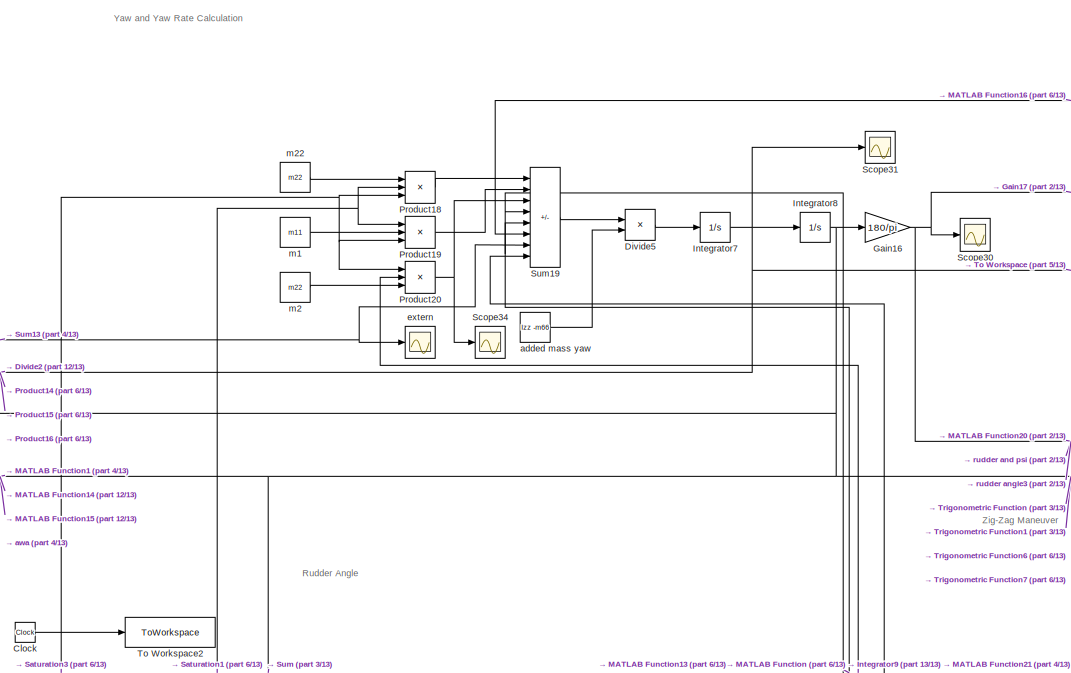
[diagram: root canvas - part 1/13, top right region]
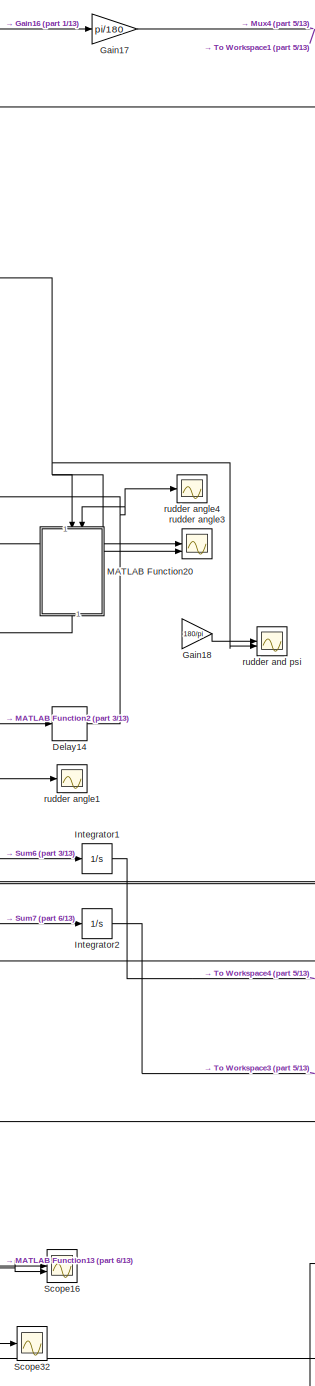
[diagram: root canvas - part 2/13, top right region]
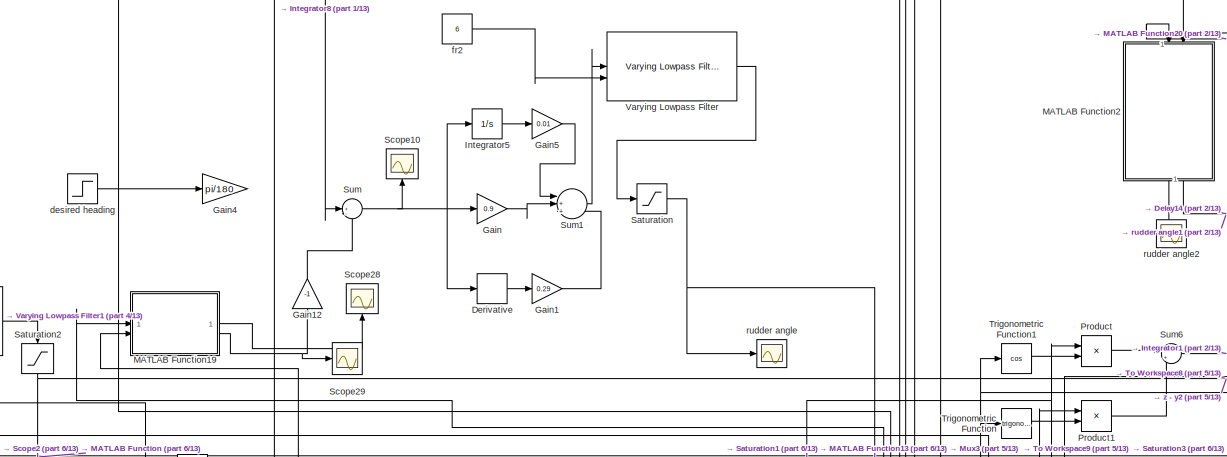
[diagram: root canvas - part 3/13, top right region]
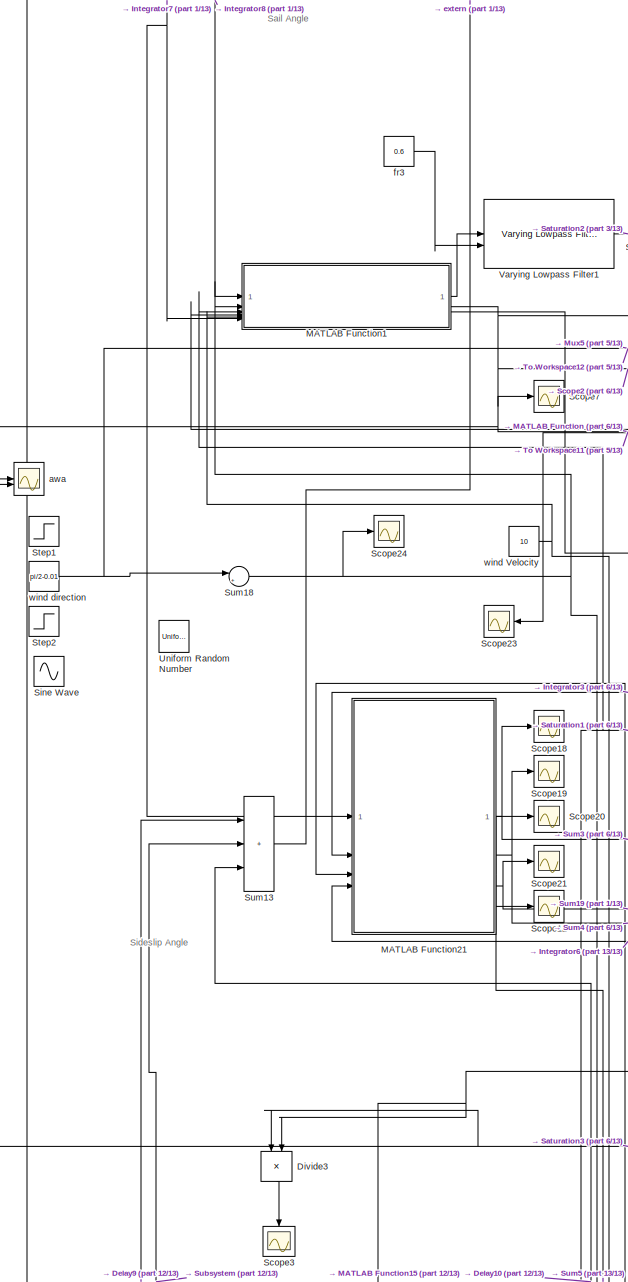
[diagram: root canvas - part 4/13, central region]
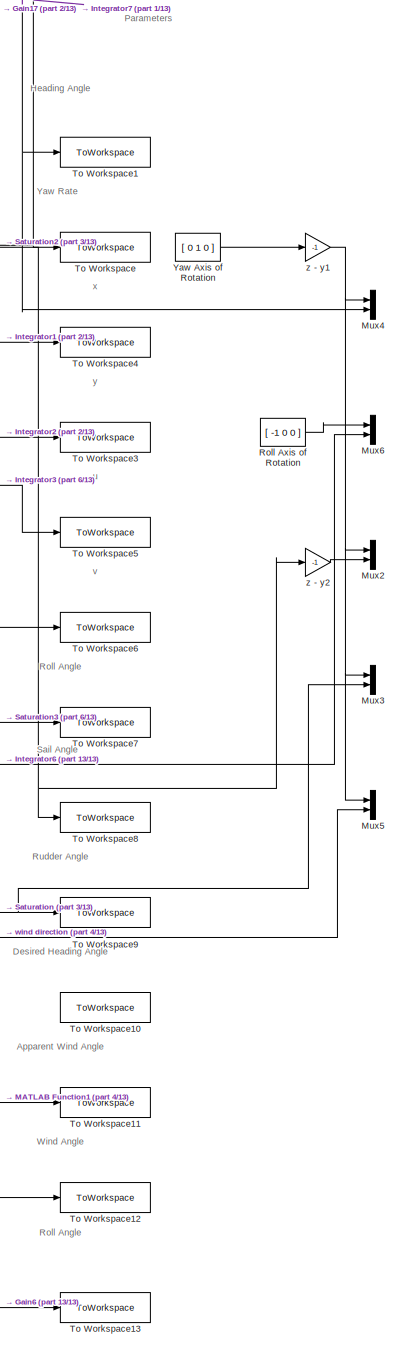
[diagram: root canvas - part 5/13, middle right region]
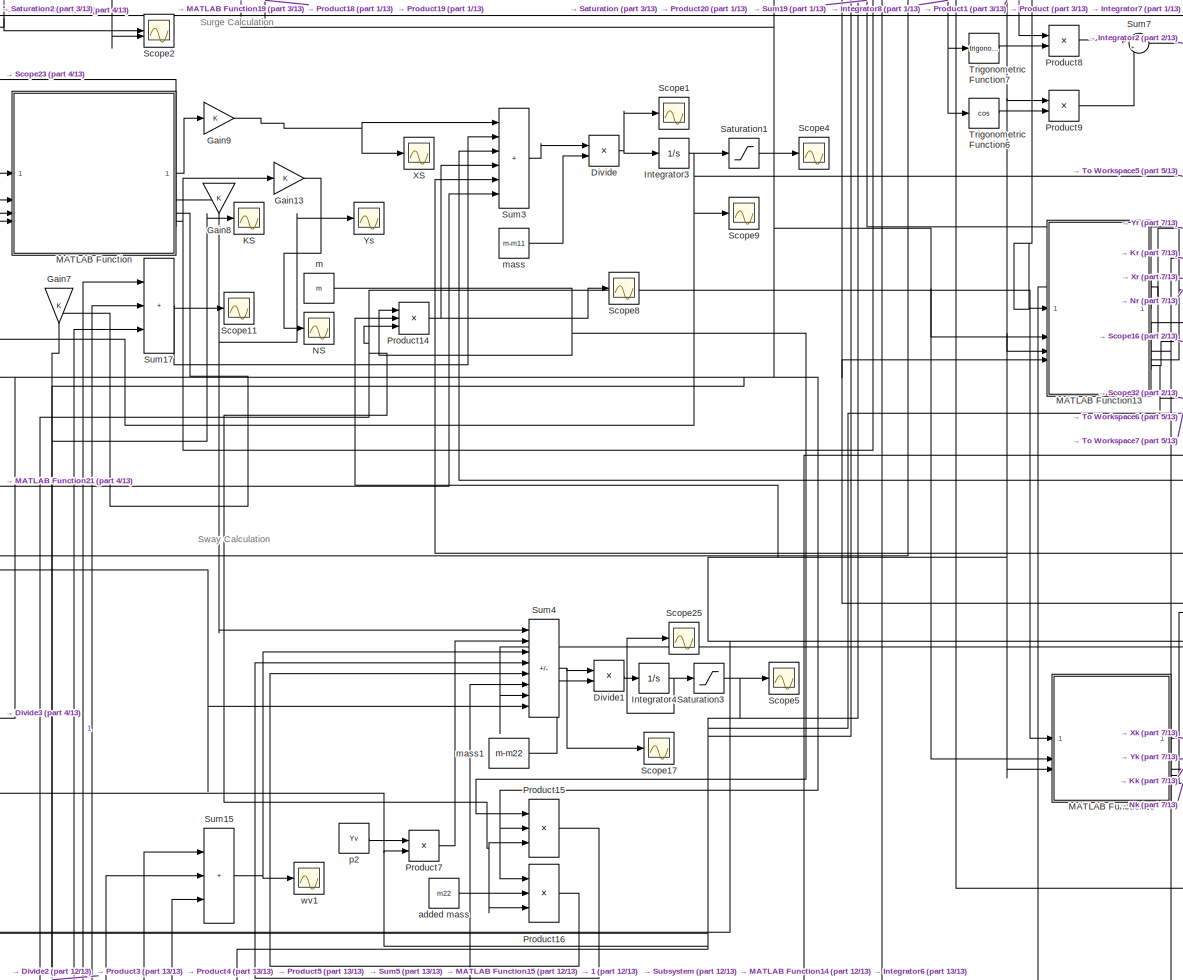
[diagram: root canvas - part 6/13, middle right region]
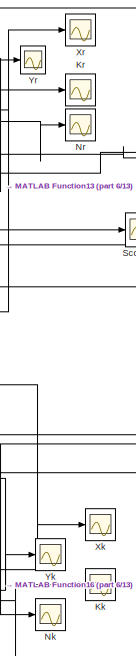
[diagram: root canvas - part 7/13, middle right region]
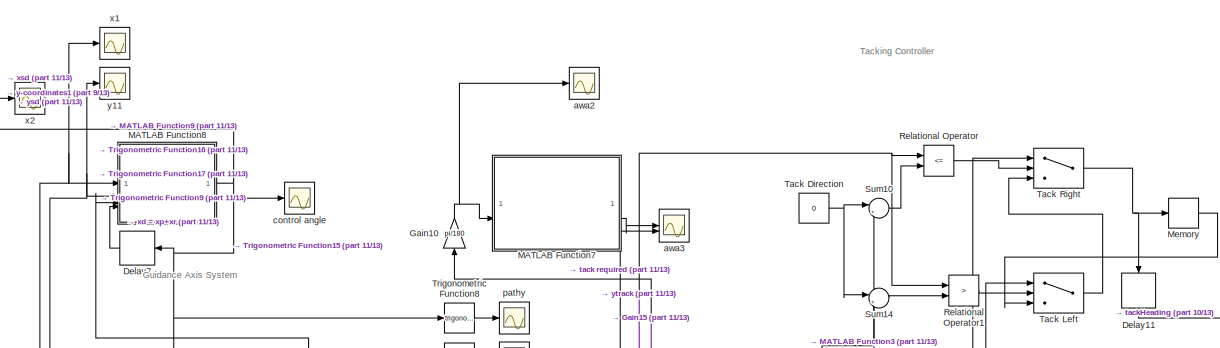
[diagram: root canvas - part 8/13, middle left region]
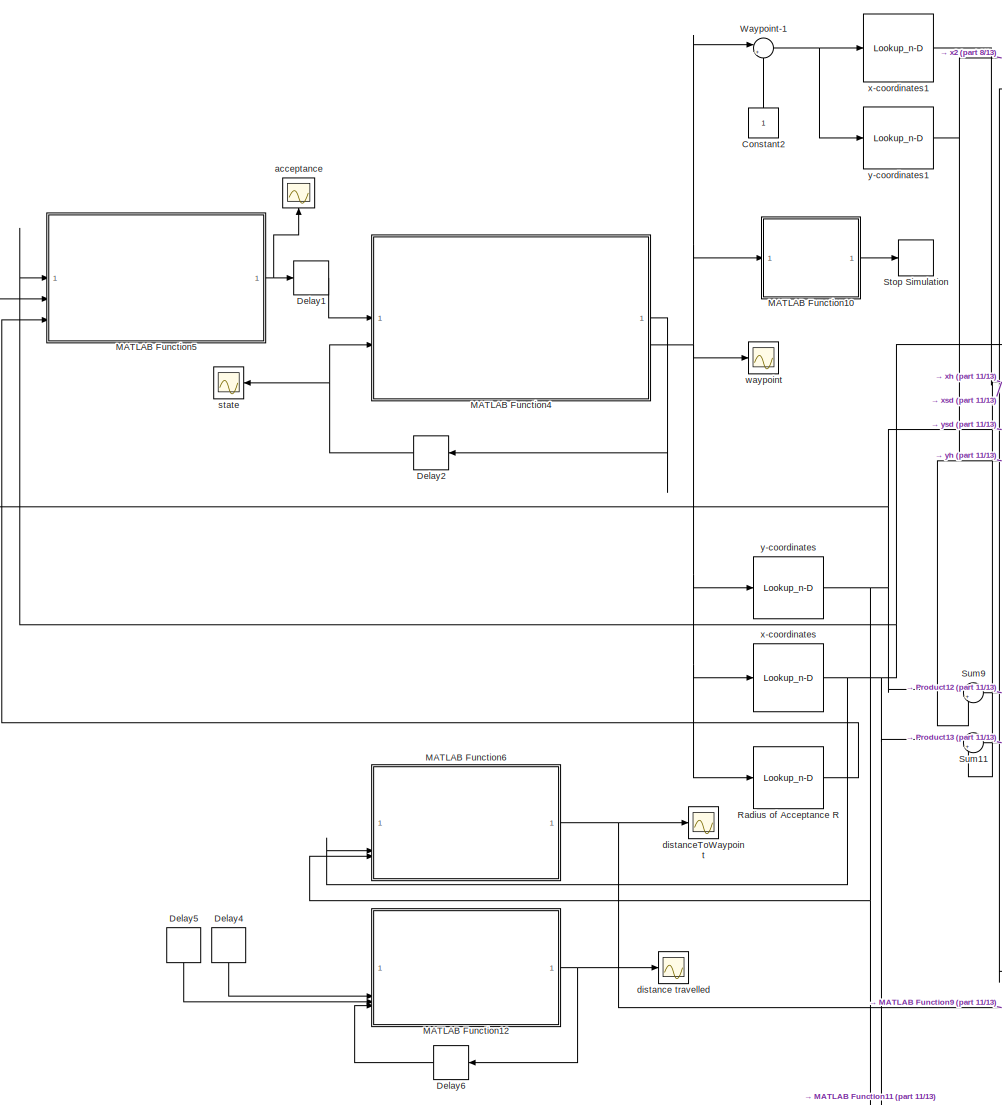
[diagram: root canvas - part 9/13, bottom left region]
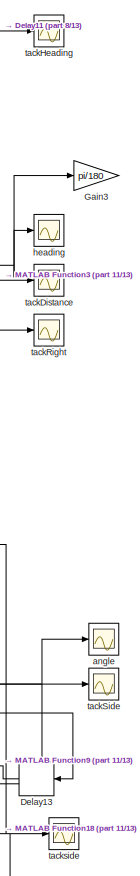
[diagram: root canvas - part 10/13, bottom center region]
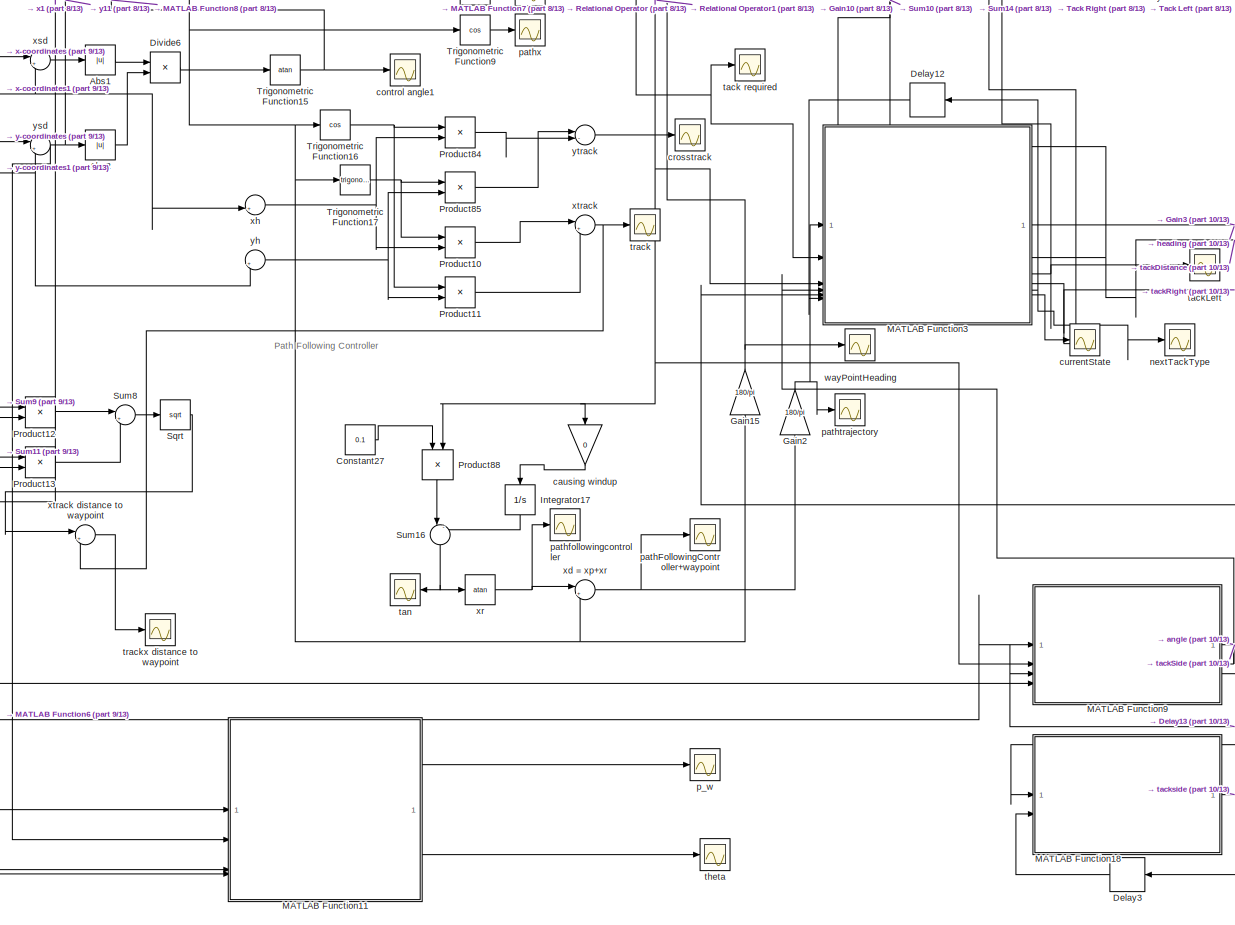
[diagram: root canvas - part 11/13, bottom left region]
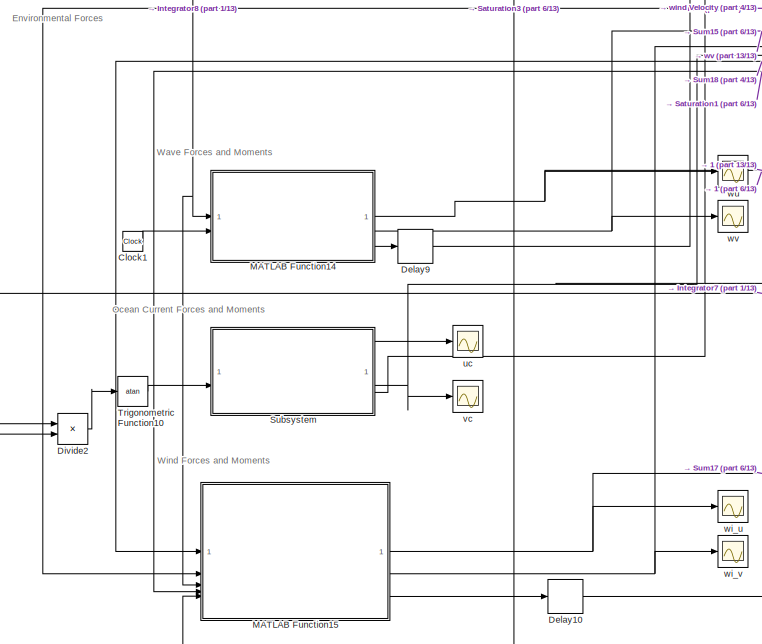
[diagram: root canvas - part 12/13, bottom center region]
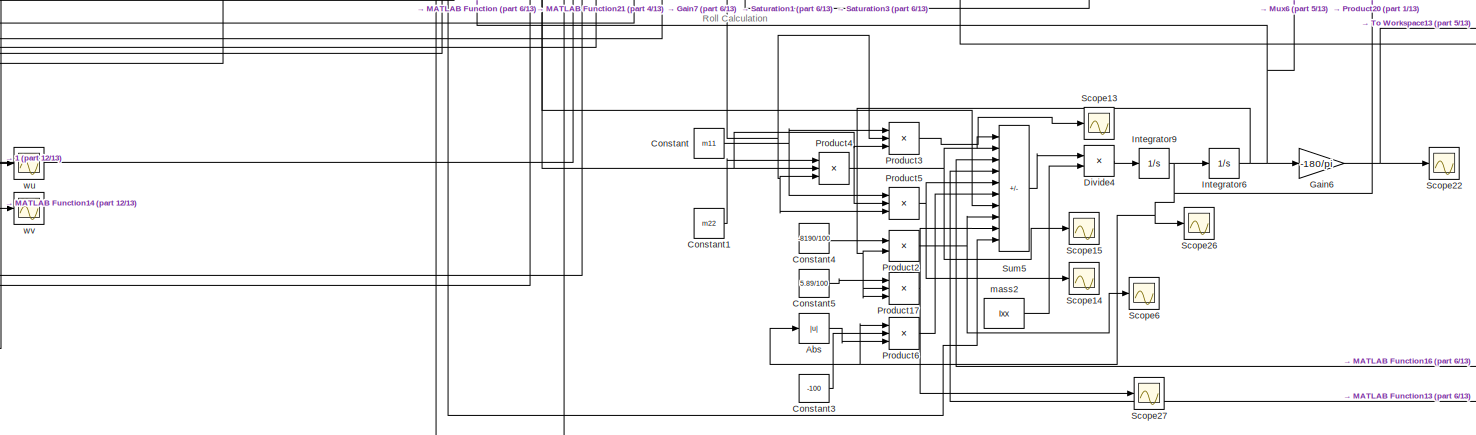
[diagram: root canvas - part 13/13, bottom right region]
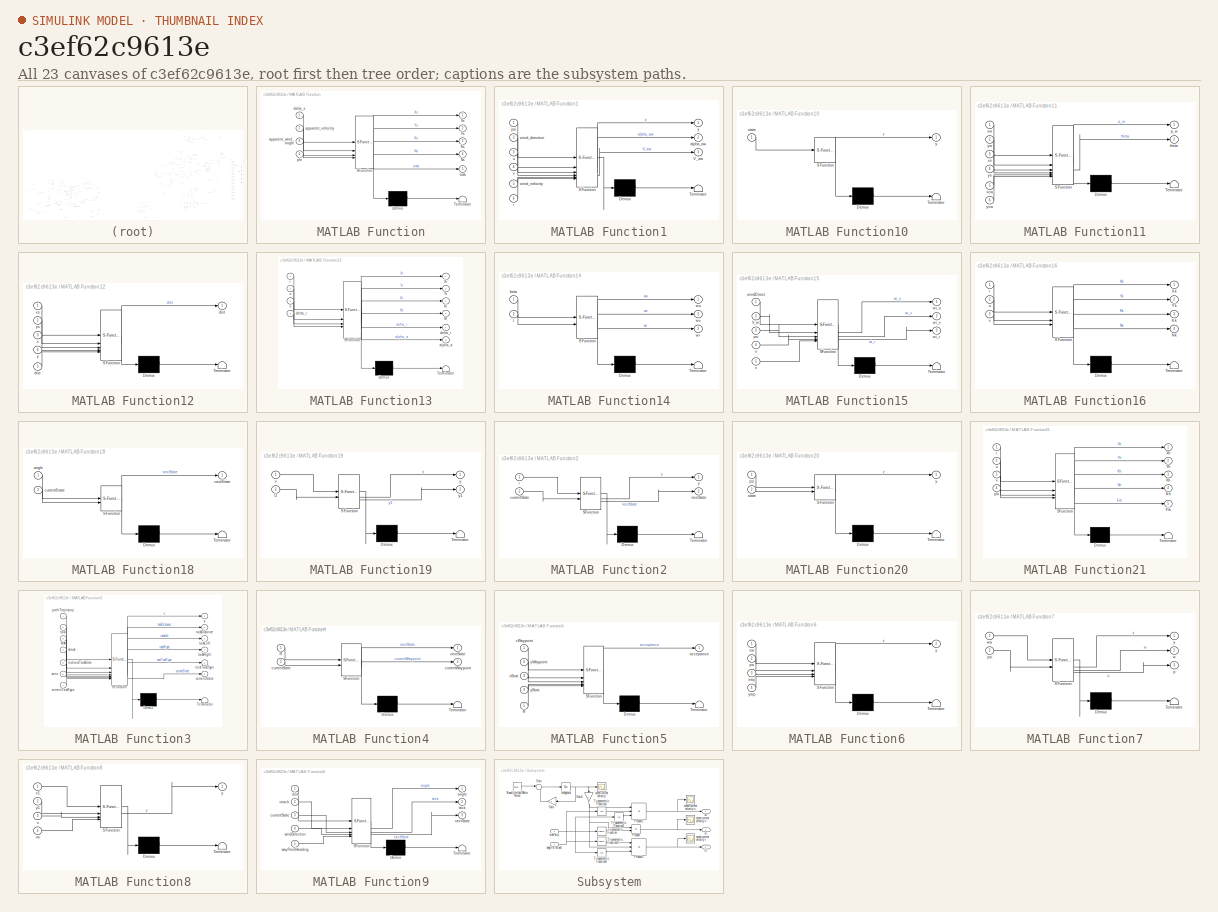
[diagram: thumbnail index - all 23 canvases of the model, root first then tree order]
MODEL slx_c3ef62c9613e
KIND model
CONFIG AbsTol = auto
CONFIG EnableMultiTasking = off
CONFIG FixedStep = auto
CONFIG MaxStep = auto
CONFIG MinStep = auto
CONFIG RelTol = 1e-3
CONFIG SampleTimeConstraint = Unconstrained
CONFIG SolverName = VariableStepAuto
CONFIG StartTime = 0.0
CONFIG StopTime = 10.0
BLOCK [Abs] Abs
  SaturateOnIntegerOverflow = off
BLOCK [Abs] Abs1
  SaturateOnIntegerOverflow = off
BLOCK [Abs] Abs2
  SaturateOnIntegerOverflow = off
BLOCK [Clock] Clock
BLOCK [Clock] Clock1
  Decimation = 1
BLOCK [Constant] Constant
  Value = m11
BLOCK [Constant] Constant1
  Value = m22
BLOCK [Constant] Constant2
  NameLocation = right
BLOCK [Constant] Constant27
  Value = 0.1
BLOCK [Constant] Constant3
  Value = -100
BLOCK [Constant] Constant4
  Value = -8190/100
BLOCK [Constant] Constant5
  Value = 5.89/100
BLOCK [Delay] Delay1
  DelayLength = 1
  InputPortMap = u0
  NameLocation = top
BLOCK [Delay] Delay10
  DelayLength = 1
  InputPortMap = u0
  NameLocation = top
BLOCK [Delay] Delay11
  DelayLength = 1
  InputPortMap = u0
  NameLocation = right
BLOCK [Delay] Delay12
  DelayLength = 1
  InputPortMap = u0
BLOCK [Delay] Delay13
  DelayLength = 1
  InputPortMap = u0
  SampleTime = 2
BLOCK [Delay] Delay14
  DelayLength = 1
  InputPortMap = u0
  NameLocation = top
  SampleTime = 0.01
BLOCK [Delay] Delay2
  DelayLength = 1
  InputPortMap = u0
BLOCK [Delay] Delay3
  DelayLength = 1
  InputPortMap = u0
  SampleTime = 2
BLOCK [Delay] Delay4
  DelayLength = 1
  InputPortMap = u0
  NameLocation = right
BLOCK [Delay] Delay5
  DelayLength = 1
  InputPortMap = u0
  NameLocation = right
BLOCK [Delay] Delay6
  DelayLength = 1
  InputPortMap = u0
BLOCK [Delay] Delay7
  DelayLength = 1
  InputPortMap = u0
BLOCK [Delay] Delay9
  DelayLength = 1
  InputPortMap = u0
  NameLocation = top
BLOCK [Derivative] Derivative
BLOCK [Product] Divide
  Inputs = */
BLOCK [Product] Divide1
  Inputs = */
BLOCK [Product] Divide2
  Inputs = */
BLOCK [Product] Divide3
  Inputs = */
  NameLocation = left
BLOCK [Product] Divide4
  Inputs = */
BLOCK [Product] Divide5
  Inputs = */
BLOCK [Product] Divide6
  Inputs = */
BLOCK [Gain] Gain
  Gain = 0.9
BLOCK [Gain] Gain1
  Gain = 0.29
BLOCK [Gain] Gain10
  Gain = pi/180
  NameLocation = right
BLOCK [Gain] Gain12
  Gain = -1
  NameLocation = right
BLOCK [Gain] Gain13
BLOCK [Gain] Gain15
  Gain = 180/pi
  NameLocation = right
BLOCK [Gain] Gain16
  Gain = 180/pi
BLOCK [Gain] Gain17
  Gain = pi/180
BLOCK [Gain] Gain18
  Gain = 180/pi
BLOCK [Gain] Gain2
  Gain = 180/pi
  NameLocation = right
BLOCK [Gain] Gain3
  Gain = pi/180
BLOCK [Gain] Gain4
  Gain = pi/180
BLOCK [Gain] Gain5
  Gain = 0.01
BLOCK [Gain] Gain6
  Gain = -180/pi
BLOCK [Gain] Gain7
  NameLocation = left
BLOCK [Gain] Gain8
  NameLocation = left
BLOCK [Gain] Gain9
BLOCK [Integrator] Integrator1
BLOCK [Integrator] Integrator17
  LimitOutput = on
  LowerSaturationLimit = -10
  NameLocation = left
  UpperSaturationLimit = 10
BLOCK [Integrator] Integrator2
BLOCK [Integrator] Integrator3
  InitialCondition = 1.3
BLOCK [Integrator] Integrator4
BLOCK [Integrator] Integrator5
BLOCK [Integrator] Integrator6
BLOCK [Integrator] Integrator7
BLOCK [Integrator] Integrator8
BLOCK [Integrator] Integrator9
BLOCK [Scope] KS
  Floating = off
  NumInputPorts = 1
  ScopeSpecificationString = Simulink.scopes.TimeScopeBlockCfg('CurrentConfiguration', extmgr.ConfigurationSet(extmgr.Configuration('Core','General UI',true),extmgr.Configuration('Core','Source UI',true),extmgr.Configuration('Sources','WiredSimulink',true,'DataLoggingVariableName','ScopeData1'),extmgr.Configuration('Visuals','Time Domain',true,'SerializedDisplays',{struct('MinYLimReal','-24.9504','MaxYLimReal','25.12072','YLa...<+1455ch>
BLOCK [Scope] Kk
  Floating = off
  NumInputPorts = 1
  ScopeSpecificationString = Simulink.scopes.TimeScopeBlockCfg('CurrentConfiguration', extmgr.ConfigurationSet(extmgr.Configuration('Core','General UI',true),extmgr.Configuration('Core','Source UI',true),extmgr.Configuration('Sources','WiredSimulink',true,'DataLoggingVariableName','ScopeData2'),extmgr.Configuration('Visuals','Time Domain',true,'SerializedDisplays',{struct('MinYLimReal','-0.05831','MaxYLimReal','0.08881','YLab...<+1488ch>
BLOCK [Scope] Kr
  Floating = off
  NameLocation = right
  NumInputPorts = 1
  ScopeSpecificationString = Simulink.scopes.TimeScopeBlockCfg('CurrentConfiguration', extmgr.ConfigurationSet(extmgr.Configuration('Core','General UI',true),extmgr.Configuration('Core','Source UI',true),extmgr.Configuration('Sources','WiredSimulink',true,'DataLoggingVariableName','ScopeData3'),extmgr.Configuration('Visuals','Time Domain',true,'SerializedDisplays',{struct('MinYLimReal','-0.96294','MaxYLimReal','1.28548','YLab...<+1570ch>
BLOCK [SubSystem] MATLAB Function
  ErrorFcn = Stateflow.Translate.translate
  LibrarySourceBlock = simulink/User-Defined\nFunctions/MATLAB Function
  PermitHierarchicalResolution = ExplicitOnly
  SFBlockType = MATLAB Function
  TreatAsAtomicUnit = on
BLOCK [Demux] MATLAB Function/ Demux 
  Outputs = 1
BLOCK [S-Function] MATLAB Function/ SFunction 
  EnableBusSupport = on
  FunctionName = sf_sfun
  PortCounts = [4 6]
  SFcnIsStateOwnerBlock = off
  SFunctionDeploymentMode = off
  Tag = Stateflow S-Function 2
BLOCK [Terminator] MATLAB Function/ Terminator 
BLOCK [Outport] MATLAB Function/Ks
  Port = 3
BLOCK [Outport] MATLAB Function/Ns
  Port = 4
BLOCK [Outport] MATLAB Function/Xs
BLOCK [Outport] MATLAB Function/Ys
  Port = 2
BLOCK [Inport] MATLAB Function/apparent_velocity
  Port = 2
BLOCK [Inport] MATLAB Function/apparent_wind_angle
  Port = 3
BLOCK [Outport] MATLAB Function/awa
  Port = 5
BLOCK [Inport] MATLAB Function/delta_s
BLOCK [Inport] MATLAB Function/phi
  Port = 4
BLOCK [SubSystem] MATLAB Function1
  ErrorFcn = Stateflow.Translate.translate
  LibrarySourceBlock = simulink/User-Defined\nFunctions/MATLAB Function
  PermitHierarchicalResolution = ExplicitOnly
  SFBlockType = MATLAB Function
  TreatAsAtomicUnit = on
BLOCK [Demux] MATLAB Function1/ Demux 
  Outputs = 1
BLOCK [S-Function] MATLAB Function1/ SFunction 
  EnableBusSupport = on
  FunctionName = sf_sfun
  PortCounts = [6 4]
  SFcnIsStateOwnerBlock = off
  SFunctionDeploymentMode = off
  Tag = Stateflow S-Function 1
BLOCK [Terminator] MATLAB Function1/ Terminator 
BLOCK [Outport] MATLAB Function1/V_aw
  Port = 3
BLOCK [Outport] MATLAB Function1/alpha_aw
  Port = 2
BLOCK [Inport] MATLAB Function1/psi
BLOCK [Inport] MATLAB Function1/r
  Port = 6
BLOCK [Inport] MATLAB Function1/u
  Port = 3
BLOCK [Inport] MATLAB Function1/v
  Port = 4
BLOCK [Inport] MATLAB Function1/wind_direction
  Port = 2
BLOCK [Inport] MATLAB Function1/wind_velocity
  Port = 5
BLOCK [Outport] MATLAB Function1/y
BLOCK [SubSystem] MATLAB Function10
  ErrorFcn = Stateflow.Translate.translate
  LibrarySourceBlock = simulink/User-Defined\nFunctions/MATLAB Function
  PermitHierarchicalResolution = ExplicitOnly
  SFBlockType = MATLAB Function
  TreatAsAtomicUnit = on
BLOCK [Demux] MATLAB Function10/ Demux 
  Outputs = 1
BLOCK [S-Function] MATLAB Function10/ SFunction 
  EnableBusSupport = on
  FunctionName = sf_sfun
  PortCounts = [1 2]
  SFcnIsStateOwnerBlock = off
  SFunctionDeploymentMode = off
  Tag = Stateflow S-Function 18
BLOCK [Terminator] MATLAB Function10/ Terminator 
BLOCK [Inport] MATLAB Function10/state
BLOCK [Outport] MATLAB Function10/y
BLOCK [SubSystem] MATLAB Function11
  ErrorFcn = Stateflow.Translate.translate
  LibrarySourceBlock = simulink/User-Defined\nFunctions/MATLAB Function
  PermitHierarchicalResolution = ExplicitOnly
  SFBlockType = MATLAB Function
  TreatAsAtomicUnit = on
BLOCK [Demux] MATLAB Function11/ Demux 
  Outputs = 1
BLOCK [S-Function] MATLAB Function11/ SFunction 
  EnableBusSupport = on
  FunctionName = sf_sfun
  PortCounts = [6 3]
  SFcnIsStateOwnerBlock = off
  SFunctionDeploymentMode = off
  Tag = Stateflow S-Function 23
BLOCK [Terminator] MATLAB Function11/ Terminator 
BLOCK [Outport] MATLAB Function11/p_w
BLOCK [Outport] MATLAB Function11/theta
  Port = 2
BLOCK [Inport] MATLAB Function11/xcw
  Port = 5
BLOCK [Inport] MATLAB Function11/xs
  Port = 3
BLOCK [Inport] MATLAB Function11/xw
BLOCK [Inport] MATLAB Function11/ycw
  Port = 6
BLOCK [Inport] MATLAB Function11/ys
  Port = 4
BLOCK [Inport] MATLAB Function11/yw
  Port = 2
BLOCK [SubSystem] MATLAB Function12
  ErrorFcn = Stateflow.Translate.translate
  LibrarySourceBlock = simulink/User-Defined\nFunctions/MATLAB Function
  PermitHierarchicalResolution = ExplicitOnly
  SFBlockType = MATLAB Function
  TreatAsAtomicUnit = on
BLOCK [Demux] MATLAB Function12/ Demux 
  Outputs = 1
BLOCK [S-Function] MATLAB Function12/ SFunction 
  EnableBusSupport = on
  FunctionName = sf_sfun
  PortCounts = [5 2]
  SFcnIsStateOwnerBlock = off
  SFunctionDeploymentMode = off
  Tag = Stateflow S-Function 24
BLOCK [Terminator] MATLAB Function12/ Terminator 
BLOCK [Outport] MATLAB Function12/dist
BLOCK [Inport] MATLAB Function12/dist 
  Port = 5
BLOCK [Inport] MATLAB Function12/x
  Port = 3
BLOCK [Inport] MATLAB Function12/xs
BLOCK [Inport] MATLAB Function12/y
  Port = 4
BLOCK [Inport] MATLAB Function12/ys
  Port = 2
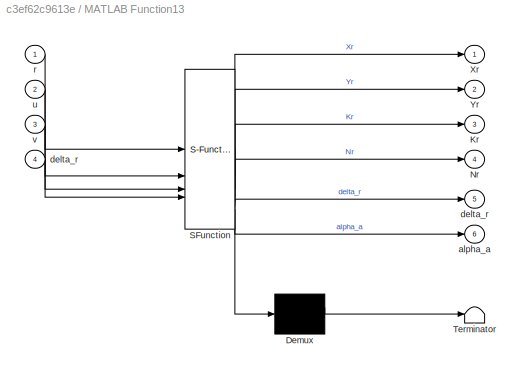
BLOCK [SubSystem] MATLAB Function13
  ErrorFcn = Stateflow.Translate.translate
  LibrarySourceBlock = simulink/User-Defined\nFunctions/MATLAB Function
  PermitHierarchicalResolution = ExplicitOnly
  SFBlockType = MATLAB Function
  TreatAsAtomicUnit = on
BLOCK [Demux] MATLAB Function13/ Demux 
  Outputs = 1
BLOCK [S-Function] MATLAB Function13/ SFunction 
  EnableBusSupport = on
  FunctionName = sf_sfun
  PortCounts = [4 7]
  SFcnIsStateOwnerBlock = off
  SFunctionDeploymentMode = off
  Tag = Stateflow S-Function 11
BLOCK [Terminator] MATLAB Function13/ Terminator 
BLOCK [Outport] MATLAB Function13/Kr
  Port = 3
BLOCK [Outport] MATLAB Function13/Nr
  Port = 4
BLOCK [Outport] MATLAB Function13/Xr
BLOCK [Outport] MATLAB Function13/Yr
  Port = 2
BLOCK [Outport] MATLAB Function13/alpha_a
  Port = 6
BLOCK [Outport] MATLAB Function13/delta_r
  Port = 5
BLOCK [Inport] MATLAB Function13/delta_r 
  Port = 4
BLOCK [Inport] MATLAB Function13/r
BLOCK [Inport] MATLAB Function13/u
  Port = 2
BLOCK [Inport] MATLAB Function13/v
  Port = 3
BLOCK [SubSystem] MATLAB Function14
  ErrorFcn = Stateflow.Translate.translate
  LibrarySourceBlock = simulink/User-Defined\nFunctions/MATLAB Function
  PermitHierarchicalResolution = ExplicitOnly
  SFBlockType = MATLAB Function
  TreatAsAtomicUnit = on
BLOCK [Demux] MATLAB Function14/ Demux 
  Outputs = 1
BLOCK [S-Function] MATLAB Function14/ SFunction 
  EnableBusSupport = on
  FunctionName = sf_sfun
  PortCounts = [2 4]
  SFcnIsStateOwnerBlock = off
  SFunctionDeploymentMode = off
  Tag = Stateflow S-Function 14
BLOCK [Terminator] MATLAB Function14/ Terminator 
BLOCK [Inport] MATLAB Function14/beta
BLOCK [Inport] MATLAB Function14/t
  Port = 2
BLOCK [Outport] MATLAB Function14/wr
  Port = 3
BLOCK [Outport] MATLAB Function14/wu
BLOCK [Outport] MATLAB Function14/wv
  Port = 2
BLOCK [SubSystem] MATLAB Function15
  ErrorFcn = Stateflow.Translate.translate
  LibrarySourceBlock = simulink/User-Defined\nFunctions/MATLAB Function
  PermitHierarchicalResolution = ExplicitOnly
  SFBlockType = MATLAB Function
  TreatAsAtomicUnit = on
BLOCK [Demux] MATLAB Function15/ Demux 
  Outputs = 1
BLOCK [S-Function] MATLAB Function15/ SFunction 
  EnableBusSupport = on
  FunctionName = sf_sfun
  PortCounts = [5 4]
  SFcnIsStateOwnerBlock = off
  SFunctionDeploymentMode = off
  Tag = Stateflow S-Function 16
BLOCK [Terminator] MATLAB Function15/ Terminator 
BLOCK [Inport] MATLAB Function15/V_w
  Port = 2
BLOCK [Inport] MATLAB Function15/psi
  Port = 3
BLOCK [Inport] MATLAB Function15/u
  Port = 4
BLOCK [Inport] MATLAB Function15/v
  Port = 5
BLOCK [Outport] MATLAB Function15/wi_r
  Port = 3
BLOCK [Outport] MATLAB Function15/wi_u
BLOCK [Outport] MATLAB Function15/wi_v
  Port = 2
BLOCK [Inport] MATLAB Function15/windDirect
BLOCK [SubSystem] MATLAB Function16
  ErrorFcn = Stateflow.Translate.translate
  LibrarySourceBlock = simulink/User-Defined\nFunctions/MATLAB Function
  PermitHierarchicalResolution = ExplicitOnly
  SFBlockType = MATLAB Function
  TreatAsAtomicUnit = on
BLOCK [Demux] MATLAB Function16/ Demux 
  Outputs = 1
BLOCK [S-Function] MATLAB Function16/ SFunction 
  EnableBusSupport = on
  FunctionName = sf_sfun
  PortCounts = [3 5]
  SFcnIsStateOwnerBlock = off
  SFunctionDeploymentMode = off
  Tag = Stateflow S-Function 17
BLOCK [Terminator] MATLAB Function16/ Terminator 
BLOCK [Outport] MATLAB Function16/Kk
  Port = 3
BLOCK [Outport] MATLAB Function16/Nk
  Port = 4
BLOCK [Outport] MATLAB Function16/Xk
BLOCK [Outport] MATLAB Function16/Yk
  Port = 2
BLOCK [Inport] MATLAB Function16/r
BLOCK [Inport] MATLAB Function16/u
  Port = 2
BLOCK [Inport] MATLAB Function16/v
  Port = 3
BLOCK [SubSystem] MATLAB Function18
  ErrorFcn = Stateflow.Translate.translate
  LibrarySourceBlock = simulink/User-Defined\nFunctions/MATLAB Function
  PermitHierarchicalResolution = ExplicitOnly
  SFBlockType = MATLAB Function
  TreatAsAtomicUnit = on
BLOCK [Demux] MATLAB Function18/ Demux 
  Outputs = 1
BLOCK [S-Function] MATLAB Function18/ SFunction 
  EnableBusSupport = on
  FunctionName = sf_sfun
  PortCounts = [2 2]
  SFcnIsStateOwnerBlock = off
  SFunctionDeploymentMode = off
  Tag = Stateflow S-Function 25
BLOCK [Terminator] MATLAB Function18/ Terminator 
BLOCK [Inport] MATLAB Function18/angle
BLOCK [Inport] MATLAB Function18/currentState
  Port = 2
BLOCK [Outport] MATLAB Function18/nextState
BLOCK [SubSystem] MATLAB Function19
  ErrorFcn = Stateflow.Translate.translate
  LibrarySourceBlock = simulink/User-Defined\nFunctions/MATLAB Function
  PermitHierarchicalResolution = ExplicitOnly
  SFBlockType = MATLAB Function
  TreatAsAtomicUnit = on
BLOCK [Demux] MATLAB Function19/ Demux 
  Outputs = 1
BLOCK [S-Function] MATLAB Function19/ SFunction 
  EnableBusSupport = on
  FunctionName = sf_sfun
  PortCounts = [2 3]
  SFcnIsStateOwnerBlock = off
  SFunctionDeploymentMode = off
  Tag = Stateflow S-Function 20
BLOCK [Terminator] MATLAB Function19/ Terminator 
BLOCK [Inport] MATLAB Function19/U
  Port = 2
BLOCK [Inport] MATLAB Function19/v
BLOCK [Outport] MATLAB Function19/y
BLOCK [Outport] MATLAB Function19/y1
  Port = 2
BLOCK [SubSystem] MATLAB Function2
  ErrorFcn = Stateflow.Translate.translate
  LibrarySourceBlock = simulink/User-Defined\nFunctions/MATLAB Function
  NameLocation = left
  PermitHierarchicalResolution = ExplicitOnly
  SFBlockType = MATLAB Function
  TreatAsAtomicUnit = on
BLOCK [Demux] MATLAB Function2/ Demux 
  Outputs = 1
BLOCK [S-Function] MATLAB Function2/ SFunction 
  EnableBusSupport = on
  FunctionName = sf_sfun
  PortCounts = [2 3]
  SFcnIsStateOwnerBlock = off
  SFunctionDeploymentMode = off
  Tag = Stateflow S-Function 3
BLOCK [Terminator] MATLAB Function2/ Terminator 
BLOCK [Inport] MATLAB Function2/currentState
  Port = 2
BLOCK [Outport] MATLAB Function2/nextState
  Port = 2
BLOCK [Inport] MATLAB Function2/r
BLOCK [Outport] MATLAB Function2/y
BLOCK [SubSystem] MATLAB Function20
  ErrorFcn = Stateflow.Translate.translate
  LibrarySourceBlock = simulink/User-Defined\nFunctions/MATLAB Function
  NameLocation = left
  PermitHierarchicalResolution = ExplicitOnly
  SFBlockType = MATLAB Function
  TreatAsAtomicUnit = on
BLOCK [Demux] MATLAB Function20/ Demux 
  Outputs = 1
BLOCK [S-Function] MATLAB Function20/ SFunction 
  EnableBusSupport = on
  FunctionName = sf_sfun
  PortCounts = [2 2]
  SFcnIsStateOwnerBlock = off
  SFunctionDeploymentMode = off
  Tag = Stateflow S-Function 21
BLOCK [Terminator] MATLAB Function20/ Terminator 
BLOCK [Inport] MATLAB Function20/psi
BLOCK [Inport] MATLAB Function20/state
  Port = 2
BLOCK [Outport] MATLAB Function20/y
BLOCK [SubSystem] MATLAB Function21
  ErrorFcn = Stateflow.Translate.translate
  LibrarySourceBlock = simulink/User-Defined\nFunctions/MATLAB Function
  PermitHierarchicalResolution = ExplicitOnly
  SFBlockType = MATLAB Function
  TreatAsAtomicUnit = on
BLOCK [Demux] MATLAB Function21/ Demux 
  Outputs = 1
BLOCK [S-Function] MATLAB Function21/ SFunction 
  EnableBusSupport = on
  FunctionName = sf_sfun
  PortCounts = [4 6]
  SFcnIsStateOwnerBlock = off
  SFunctionDeploymentMode = off
  Tag = Stateflow S-Function 22
BLOCK [Terminator] MATLAB Function21/ Terminator 
BLOCK [Outport] MATLAB Function21/Frh
  Port = 5
BLOCK [Outport] MATLAB Function21/Kh
  Port = 3
BLOCK [Outport] MATLAB Function21/Nh
  Port = 4
BLOCK [Outport] MATLAB Function21/Xh
BLOCK [Outport] MATLAB Function21/Yh
  Port = 2
BLOCK [Inport] MATLAB Function21/phi
  Port = 4
BLOCK [Inport] MATLAB Function21/r
BLOCK [Inport] MATLAB Function21/u
  Port = 2
BLOCK [Inport] MATLAB Function21/v
  Port = 3
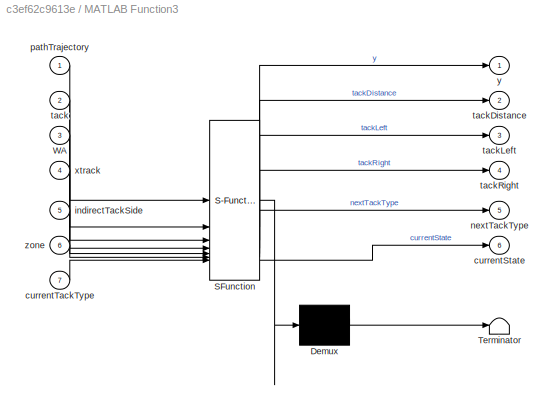
BLOCK [SubSystem] MATLAB Function3
  ErrorFcn = Stateflow.Translate.translate
  LibrarySourceBlock = simulink/User-Defined\nFunctions/MATLAB Function
  PermitHierarchicalResolution = ExplicitOnly
  SFBlockType = MATLAB Function
  TreatAsAtomicUnit = on
BLOCK [Demux] MATLAB Function3/ Demux 
  Outputs = 1
BLOCK [S-Function] MATLAB Function3/ SFunction 
  EnableBusSupport = on
  FunctionName = sf_sfun
  PortCounts = [7 7]
  SFcnIsStateOwnerBlock = off
  SFunctionDeploymentMode = off
  Tag = Stateflow S-Function 26
BLOCK [Terminator] MATLAB Function3/ Terminator 
BLOCK [Inport] MATLAB Function3/WA
  Port = 3
BLOCK [Outport] MATLAB Function3/currentState
  Port = 6
BLOCK [Inport] MATLAB Function3/currentTackType
  Port = 7
BLOCK [Inport] MATLAB Function3/indirectTackSide
  Port = 5
BLOCK [Outport] MATLAB Function3/nextTackType
  Port = 5
BLOCK [Inport] MATLAB Function3/pathTrajectory
BLOCK [Inport] MATLAB Function3/tack
  Port = 2
BLOCK [Outport] MATLAB Function3/tackDistance
  Port = 2
BLOCK [Outport] MATLAB Function3/tackLeft
  Port = 3
BLOCK [Outport] MATLAB Function3/tackRight
  Port = 4
BLOCK [Inport] MATLAB Function3/xtrack
  Port = 4
BLOCK [Outport] MATLAB Function3/y
BLOCK [Inport] MATLAB Function3/zone
  Port = 6
BLOCK [SubSystem] MATLAB Function4
  ErrorFcn = Stateflow.Translate.translate
  LibrarySourceBlock = simulink/User-Defined\nFunctions/MATLAB Function
  PermitHierarchicalResolution = ExplicitOnly
  SFBlockType = MATLAB Function
  TreatAsAtomicUnit = on
BLOCK [Demux] MATLAB Function4/ Demux 
  Outputs = 1
BLOCK [S-Function] MATLAB Function4/ SFunction 
  EnableBusSupport = on
  FunctionName = sf_sfun
  PortCounts = [2 3]
  SFcnIsStateOwnerBlock = off
  SFunctionDeploymentMode = off
  Tag = Stateflow S-Function 27
BLOCK [Terminator] MATLAB Function4/ Terminator 
BLOCK [Inport] MATLAB Function4/R
BLOCK [Inport] MATLAB Function4/currentState
  Port = 2
BLOCK [Outport] MATLAB Function4/currentWaypoint
  Port = 2
BLOCK [Outport] MATLAB Function4/nextState
BLOCK [SubSystem] MATLAB Function5
  ErrorFcn = Stateflow.Translate.translate
  LibrarySourceBlock = simulink/User-Defined\nFunctions/MATLAB Function
  PermitHierarchicalResolution = ExplicitOnly
  SFBlockType = MATLAB Function
  TreatAsAtomicUnit = on
BLOCK [Demux] MATLAB Function5/ Demux 
  Outputs = 1
BLOCK [S-Function] MATLAB Function5/ SFunction 
  EnableBusSupport = on
  FunctionName = sf_sfun
  PortCounts = [5 2]
  SFcnIsStateOwnerBlock = off
  SFunctionDeploymentMode = off
  Tag = Stateflow S-Function 28
BLOCK [Terminator] MATLAB Function5/ Terminator 
BLOCK [Inport] MATLAB Function5/R
  Port = 5
BLOCK [Outport] MATLAB Function5/acceptance
BLOCK [Inport] MATLAB Function5/xBoat
  Port = 3
BLOCK [Inport] MATLAB Function5/xWaypoint
BLOCK [Inport] MATLAB Function5/yBoat
  Port = 4
BLOCK [Inport] MATLAB Function5/yWaypoint
  Port = 2
BLOCK [SubSystem] MATLAB Function6
  ErrorFcn = Stateflow.Translate.translate
  LibrarySourceBlock = simulink/User-Defined\nFunctions/MATLAB Function
  PermitHierarchicalResolution = ExplicitOnly
  SFBlockType = MATLAB Function
  TreatAsAtomicUnit = on
BLOCK [Demux] MATLAB Function6/ Demux 
  Outputs = 1
BLOCK [S-Function] MATLAB Function6/ SFunction 
  EnableBusSupport = on
  FunctionName = sf_sfun
  PortCounts = [4 2]
  SFcnIsStateOwnerBlock = off
  SFunctionDeploymentMode = off
  Tag = Stateflow S-Function 29
BLOCK [Terminator] MATLAB Function6/ Terminator 
BLOCK [Inport] MATLAB Function6/xw
BLOCK [Inport] MATLAB Function6/xwp
  Port = 3
BLOCK [Outport] MATLAB Function6/y
BLOCK [Inport] MATLAB Function6/yw
  Port = 2
BLOCK [Inport] MATLAB Function6/ywp
  Port = 4
BLOCK [SubSystem] MATLAB Function7
  ErrorFcn = Stateflow.Translate.translate
  LibrarySourceBlock = simulink/User-Defined\nFunctions/MATLAB Function
  PermitHierarchicalResolution = ExplicitOnly
  SFBlockType = MATLAB Function
  TreatAsAtomicUnit = on
BLOCK [Demux] MATLAB Function7/ Demux 
  Outputs = 1
BLOCK [S-Function] MATLAB Function7/ SFunction 
  EnableBusSupport = on
  FunctionName = sf_sfun
  PortCounts = [2 4]
  SFcnIsStateOwnerBlock = off
  SFunctionDeploymentMode = off
  Tag = Stateflow S-Function 30
BLOCK [Terminator] MATLAB Function7/ Terminator 
BLOCK [Outport] MATLAB Function7/p
  Port = 3
BLOCK [Inport] MATLAB Function7/psi
  Port = 2
BLOCK [Outport] MATLAB Function7/w
  Port = 2
BLOCK [Inport] MATLAB Function7/wa
BLOCK [Outport] MATLAB Function7/y
BLOCK [SubSystem] MATLAB Function8
  ErrorFcn = Stateflow.Translate.translate
  LibrarySourceBlock = simulink/User-Defined\nFunctions/MATLAB Function
  PermitHierarchicalResolution = ExplicitOnly
  SFBlockType = MATLAB Function
  TreatAsAtomicUnit = on
BLOCK [Demux] MATLAB Function8/ Demux 
  Outputs = 1
BLOCK [S-Function] MATLAB Function8/ SFunction 
  EnableBusSupport = on
  FunctionName = sf_sfun
  PortCounts = [4 2]
  SFcnIsStateOwnerBlock = off
  SFunctionDeploymentMode = off
  Tag = Stateflow S-Function 31
BLOCK [Terminator] MATLAB Function8/ Terminator 
BLOCK [Inport] MATLAB Function8/u
  Port = 3
BLOCK [Inport] MATLAB Function8/us
  Port = 4
BLOCK [Inport] MATLAB Function8/x1
BLOCK [Outport] MATLAB Function8/y
BLOCK [Inport] MATLAB Function8/y1
  Port = 2
BLOCK [SubSystem] MATLAB Function9
  ErrorFcn = Stateflow.Translate.translate
  LibrarySourceBlock = simulink/User-Defined\nFunctions/MATLAB Function
  PermitHierarchicalResolution = ExplicitOnly
  SFBlockType = MATLAB Function
  TreatAsAtomicUnit = on
BLOCK [Demux] MATLAB Function9/ Demux 
  Outputs = 1
BLOCK [S-Function] MATLAB Function9/ SFunction 
  EnableBusSupport = on
  FunctionName = sf_sfun
  PortCounts = [5 4]
  SFcnIsStateOwnerBlock = off
  SFunctionDeploymentMode = off
  Tag = Stateflow S-Function 32
BLOCK [Terminator] MATLAB Function9/ Terminator 
BLOCK [Outport] MATLAB Function9/angle
BLOCK [Inport] MATLAB Function9/currentState
  Port = 3
BLOCK [Inport] MATLAB Function9/dist
BLOCK [Outport] MATLAB Function9/nextState
  Port = 3
BLOCK [Outport] MATLAB Function9/tack
  Port = 2
BLOCK [Inport] MATLAB Function9/wayPointHeading
  Port = 5
BLOCK [Inport] MATLAB Function9/windDirection
  Port = 4
BLOCK [Inport] MATLAB Function9/xtrack
  Port = 2
BLOCK [Memory] Memory
BLOCK [Mux] Mux2
  DisplayOption = bar
  Inputs = 2
BLOCK [Mux] Mux3
  DisplayOption = bar
  Inputs = 2
BLOCK [Mux] Mux4
  DisplayOption = bar
  Inputs = 2
BLOCK [Mux] Mux5
  DisplayOption = bar
  Inputs = 2
BLOCK [Mux] Mux6
  DisplayOption = bar
  Inputs = 2
BLOCK [Scope] NS
  Floating = off
  NumInputPorts = 1
  ScopeSpecificationString = Simulink.scopes.TimeScopeBlockCfg('CurrentConfiguration', extmgr.ConfigurationSet(extmgr.Configuration('Core','General UI',true),extmgr.Configuration('Core','Source UI',true),extmgr.Configuration('Sources','WiredSimulink',true,'DataLoggingVariableName','ScopeData4'),extmgr.Configuration('Visuals','Time Domain',true,'SerializedDisplays',{struct('MinYLimReal','-0.06756','MaxYLimReal','0.60803','YLab...<+1471ch>
BLOCK [Scope] Nk
  Floating = off
  NumInputPorts = 1
  ScopeSpecificationString = Simulink.scopes.TimeScopeBlockCfg('CurrentConfiguration', extmgr.ConfigurationSet(extmgr.Configuration('Core','General UI',true),extmgr.Configuration('Core','Source UI',true),extmgr.Configuration('Sources','WiredSimulink',true,'DataLoggingVariableName','ScopeData5'),extmgr.Configuration('Visuals','Time Domain',true,'SerializedDisplays',{struct('MinYLimReal','-0.15231','MaxYLimReal','0.01692','YLab...<+1485ch>
BLOCK [Scope] Nr
  Floating = off
  NumInputPorts = 1
  ScopeSpecificationString = Simulink.scopes.TimeScopeBlockCfg('CurrentConfiguration', extmgr.ConfigurationSet(extmgr.Configuration('Core','General UI',true),extmgr.Configuration('Core','Source UI',true),extmgr.Configuration('Sources','WiredSimulink',true,'DataLoggingVariableName','ScopeData6'),extmgr.Configuration('Visuals','Time Domain',true,'SerializedDisplays',{struct('MinYLimReal','-0.50667','MaxYLimReal','0.20212','YLab...<+1451ch>
BLOCK [Product] Product
BLOCK [Product] Product1
BLOCK [Product] Product10
BLOCK [Product] Product11
BLOCK [Product] Product12
BLOCK [Product] Product13
BLOCK [Product] Product14
  Inputs = 3
BLOCK [Product] Product15
  Inputs = 3
BLOCK [Product] Product16
  Inputs = 3
BLOCK [Product] Product17
  Inputs = 3
BLOCK [Product] Product18
  Inputs = 3
BLOCK [Product] Product19
  Inputs = 3
BLOCK [Product] Product2
BLOCK [Product] Product20
  Inputs = 3
BLOCK [Product] Product3
  Inputs = 3
BLOCK [Product] Product4
  Inputs = 3
BLOCK [Product] Product5
  Inputs = 3
BLOCK [Product] Product6
  Inputs = 3
BLOCK [Product] Product7
BLOCK [Product] Product8
BLOCK [Product] Product84
BLOCK [Product] Product85
BLOCK [Product] Product88
  NameLocation = left
BLOCK [Product] Product9
BLOCK [Lookup_n-D] Radius of Acceptance R
  BreakpointsForDimension1 = Waypoints.number
  ExtrapMethod = Cubic spline
  InputPortMap = u0
  InternalRulePriority = Speed
  InterpMethod = Cubic spline
  NameLocation = top
  NumberOfTableDimensions = 1
  RndMeth = Simplest
  Table = Waypoints.R
BLOCK [RelationalOperator] Relational Operator
  InputSameDT = off
  Operator = <=
  OutDataTypeStr = boolean
  RndMeth = Simplest
BLOCK [RelationalOperator] Relational Operator1
  InputSameDT = off
  Operator = >
  OutDataTypeStr = boolean
  RndMeth = Simplest
BLOCK [Constant] Roll Axis of Rotation
  NameLocation = top
  Value = [ -1 0 0 ]
BLOCK [Saturate] Saturation
  LowerLimit = -pi/6
  UpperLimit = pi/6
  ZeroCross = off
BLOCK [Saturate] Saturation1
  LowerLimit = -1.3
  UpperLimit = 1.3
BLOCK [Saturate] Saturation2
  LowerLimit = -pi/3
  NameLocation = left
  UpperLimit = pi/3
BLOCK [Saturate] Saturation3
  LowerLimit = -0.1
  UpperLimit = 0.1
BLOCK [Scope] Scope1
  Floating = off
  NumInputPorts = 1
  ScopeSpecificationString = Simulink.scopes.TimeScopeBlockCfg('CurrentConfiguration', extmgr.ConfigurationSet(extmgr.Configuration('Core','General UI',true),extmgr.Configuration('Core','Source UI',true),extmgr.Configuration('Sources','WiredSimulink',true,'DataLoggingVariableName','ScopeData7'),extmgr.Configuration('Visuals','Time Domain',true,'SerializedDisplays',{struct('MinYLimReal','-27.65396','MaxYLimReal','245.49859','Y...<+1449ch>
BLOCK [Scope] Scope10
  Floating = off
  NameLocation = right
  NumInputPorts = 1
  ScopeSpecificationString = Simulink.scopes.TimeScopeBlockCfg('CurrentConfiguration', extmgr.ConfigurationSet(extmgr.Configuration('Core','General UI',true),extmgr.Configuration('Core','Source UI',true),extmgr.Configuration('Sources','WiredSimulink',true,'DataLoggingVariableName','ScopeData8'),extmgr.Configuration('Visuals','Time Domain',true,'SerializedDisplays',{struct('MinYLimReal','-2.23443','MaxYLimReal','4.59583','YLab...<+1416ch>
BLOCK [Scope] Scope11
  Floating = off
  NumInputPorts = 1
  ScopeSpecificationString = Simulink.scopes.TimeScopeBlockCfg('CurrentConfiguration', extmgr.ConfigurationSet(extmgr.Configuration('Core','General UI',true),extmgr.Configuration('Core','Source UI',true),extmgr.Configuration('Sources','WiredSimulink',true,'DataLoggingVariableName','ScopeData9'),extmgr.Configuration('Visuals','Time Domain',true,'SerializedDisplays',{struct('MinYLimReal','-0.11995','MaxYLimReal','0.12165','YLab...<+1389ch>
BLOCK [Scope] Scope12
  Floating = off
  NameLocation = right
  NumInputPorts = 1
  ScopeSpecificationString = Simulink.scopes.TimeScopeBlockCfg('CurrentConfiguration', extmgr.ConfigurationSet(extmgr.Configuration('Core','General UI',true),extmgr.Configuration('Core','Source UI',true),extmgr.Configuration('Sources','WiredSimulink',true,'DataLoggingVariableName','ScopeData10'),extmgr.Configuration('Visuals','Time Domain',true,'SerializedDisplays',{struct('MinYLimReal','-68.40406','MaxYLimReal','10.28741','Y...<+1441ch>
BLOCK [Scope] Scope13
  Floating = off
  NumInputPorts = 1
  ScopeSpecificationString = Simulink.scopes.TimeScopeBlockCfg('CurrentConfiguration', extmgr.ConfigurationSet(extmgr.Configuration('Core','General UI',true),extmgr.Configuration('Core','Source UI',true),extmgr.Configuration('Sources','WiredSimulink',true,'DataLoggingVariableName','ScopeData11'),extmgr.Configuration('Visuals','Time Domain',true,'SerializedDisplays',{struct('MinYLimReal','-0.00436','MaxYLimReal','0.00545','YLa...<+1439ch>
BLOCK [Scope] Scope14
  Floating = off
  NumInputPorts = 1
  ScopeSpecificationString = Simulink.scopes.TimeScopeBlockCfg('CurrentConfiguration', extmgr.ConfigurationSet(extmgr.Configuration('Core','General UI',true),extmgr.Configuration('Core','Source UI',true),extmgr.Configuration('Sources','WiredSimulink',true,'DataLoggingVariableName','ScopeData12'),extmgr.Configuration('Visuals','Time Domain',true,'SerializedDisplays',{struct('MinYLimReal','-0.00102','MaxYLimReal','0.00914','YLa...<+1439ch>
BLOCK [Scope] Scope15
  Floating = off
  NumInputPorts = 1
  ScopeSpecificationString = Simulink.scopes.TimeScopeBlockCfg('CurrentConfiguration', extmgr.ConfigurationSet(extmgr.Configuration('Core','General UI',true),extmgr.Configuration('Core','Source UI',true),extmgr.Configuration('Sources','WiredSimulink',true,'DataLoggingVariableName','ScopeData13'),extmgr.Configuration('Visuals','Time Domain',true,'SerializedDisplays',{struct('MinYLimReal','-0.03021','MaxYLimReal','0.27188','YLa...<+1439ch>
BLOCK [Scope] Scope16
  Floating = off
  NumInputPorts = 2
  ScopeSpecificationString = Simulink.scopes.TimeScopeBlockCfg('CurrentConfiguration', extmgr.ConfigurationSet(extmgr.Configuration('Core','General UI',true),extmgr.Configuration('Core','Source UI',true),extmgr.Configuration('Sources','WiredSimulink',true,'DataLoggingVariableName','ScopeData14'),extmgr.Configuration('Visuals','Time Domain',true,'SerializedDisplays',{struct('MinYLimReal','-0.21327','MaxYLimReal','0.29518','YLa...<+1486ch>
BLOCK [Scope] Scope17
  Floating = off
  NumInputPorts = 1
  ScopeSpecificationString = Simulink.scopes.TimeScopeBlockCfg('CurrentConfiguration', extmgr.ConfigurationSet(extmgr.Configuration('Core','General UI',true),extmgr.Configuration('Core','Source UI',true),extmgr.Configuration('Sources','WiredSimulink',true,'DataLoggingVariableName','ScopeData15'),extmgr.Configuration('Visuals','Time Domain',true,'SerializedDisplays',{struct('MinYLimReal','-6.36726','MaxYLimReal','6.36963','YLa...<+1436ch>
BLOCK [Scope] Scope18
  Floating = off
  NameLocation = right
  NumInputPorts = 1
  ScopeSpecificationString = Simulink.scopes.TimeScopeBlockCfg('CurrentConfiguration', extmgr.ConfigurationSet(extmgr.Configuration('Core','General UI',true),extmgr.Configuration('Core','Source UI',true),extmgr.Configuration('Sources','WiredSimulink',true,'DataLoggingVariableName','ScopeData16'),extmgr.Configuration('Visuals','Time Domain',true,'SerializedDisplays',{struct('MinYLimReal','-128.77419','MaxYLimReal','19.48694','...<+1446ch>
BLOCK [Scope] Scope19
  Floating = off
  NameLocation = right
  NumInputPorts = 1
  ScopeSpecificationString = Simulink.scopes.TimeScopeBlockCfg('CurrentConfiguration', extmgr.ConfigurationSet(extmgr.Configuration('Core','General UI',true),extmgr.Configuration('Core','Source UI',true),extmgr.Configuration('Sources','WiredSimulink',true,'DataLoggingVariableName','ScopeData17'),extmgr.Configuration('Visuals','Time Domain',true,'SerializedDisplays',{struct('MinYLimReal','-71.38544','MaxYLimReal','72.16282','Y...<+1440ch>
BLOCK [Scope] Scope2
  Floating = off
  NumInputPorts = 2
  ScopeSpecificationString = Simulink.scopes.TimeScopeBlockCfg('CurrentConfiguration', extmgr.ConfigurationSet(extmgr.Configuration('Core','General UI',true,'FigureColor',[1 1 1]),extmgr.Configuration('Core','Source UI',true),extmgr.Configuration('Sources','WiredSimulink',true,'DataLoggingVariableName','ScopeData18'),extmgr.Configuration('Visuals','Time Domain',true,'SerializedDisplays',{struct('MinYLimReal','-3.92698','MaxYL...<+1678ch>
BLOCK [Scope] Scope20
  Floating = off
  NameLocation = right
  NumInputPorts = 1
  ScopeSpecificationString = Simulink.scopes.TimeScopeBlockCfg('CurrentConfiguration', extmgr.ConfigurationSet(extmgr.Configuration('Core','General UI',true),extmgr.Configuration('Core','Source UI',true),extmgr.Configuration('Sources','WiredSimulink',true,'DataLoggingVariableName','ScopeData19'),extmgr.Configuration('Visuals','Time Domain',true,'SerializedDisplays',{struct('MinYLimReal','-0.07139','MaxYLimReal','0.07216','YLa...<+1434ch>
BLOCK [Scope] Scope21
  Floating = off
  NameLocation = right
  NumInputPorts = 1
  ScopeSpecificationString = Simulink.scopes.TimeScopeBlockCfg('CurrentConfiguration', extmgr.ConfigurationSet(extmgr.Configuration('Core','General UI',true),extmgr.Configuration('Core','Source UI',true),extmgr.Configuration('Sources','WiredSimulink',true,'DataLoggingVariableName','ScopeData20'),extmgr.Configuration('Visuals','Time Domain',true,'SerializedDisplays',{struct('MinYLimReal','-1.00000','MaxYLimReal','1.00000','YLa...<+1434ch>
BLOCK [Scope] Scope22
  Floating = off
  NumInputPorts = 1
  ScopeSpecificationString = Simulink.scopes.TimeScopeBlockCfg('CurrentConfiguration', extmgr.ConfigurationSet(extmgr.Configuration('Core','General UI',true),extmgr.Configuration('Core','Source UI',true),extmgr.Configuration('Sources','WiredSimulink',true,'DataLoggingVariableName','ScopeData21'),extmgr.Configuration('Visuals','Time Domain',true,'SerializedDisplays',{struct('MinYLimReal','-0.26651','MaxYLimReal','2.39863','YLa...<+1439ch>
BLOCK [Scope] Scope23
  Floating = off
  NameLocation = left
  NumInputPorts = 1
  ScopeSpecificationString = Simulink.scopes.TimeScopeBlockCfg('CurrentConfiguration', extmgr.ConfigurationSet(extmgr.Configuration('Core','General UI',true),extmgr.Configuration('Core','Source UI',true),extmgr.Configuration('Sources','WiredSimulink',true,'DataLoggingVariableName','ScopeData22'),extmgr.Configuration('Visuals','Time Domain',true,'SerializedDisplays',{struct('MinYLimReal','-1.05588','MaxYLimReal','1.80532','YLa...<+1433ch>
BLOCK [Scope] Scope24
  Floating = off
  NumInputPorts = 1
  ScopeSpecificationString = Simulink.scopes.TimeScopeBlockCfg('CurrentConfiguration', extmgr.ConfigurationSet(extmgr.Configuration('Core','General UI',true),extmgr.Configuration('Core','Source UI',true),extmgr.Configuration('Sources','WiredSimulink',true,'DataLoggingVariableName','ScopeData23'),extmgr.Configuration('Visuals','Time Domain',true,'SerializedDisplays',{struct('MinYLimReal','0.5608','MaxYLimReal','2.5608','YLabel...<+1463ch>
BLOCK [Scope] Scope25
  Floating = off
  NumInputPorts = 1
  ScopeSpecificationString = Simulink.scopes.TimeScopeBlockCfg('CurrentConfiguration', extmgr.ConfigurationSet(extmgr.Configuration('Core','General UI',true),extmgr.Configuration('Core','Source UI',true),extmgr.Configuration('Sources','WiredSimulink',true,'DataLoggingVariableName','ScopeData24'),extmgr.Configuration('Visuals','Time Domain',true,'SerializedDisplays',{struct('MinYLimReal','-134.91638','MaxYLimReal','143.74628',...<+1456ch>
BLOCK [Scope] Scope26
  Floating = off
  NumInputPorts = 1
  ScopeSpecificationString = Simulink.scopes.TimeScopeBlockCfg('CurrentConfiguration', extmgr.ConfigurationSet(extmgr.Configuration('Core','General UI',true),extmgr.Configuration('Core','Source UI',true),extmgr.Configuration('Sources','WiredSimulink',true,'DataLoggingVariableName','ScopeData25'),extmgr.Configuration('Visuals','Time Domain',true,'SerializedDisplays',{struct('MinYLimReal','-2.2574','MaxYLimReal','2.33853','YLab...<+1440ch>
BLOCK [Scope] Scope27
  Floating = off
  NumInputPorts = 1
  ScopeSpecificationString = Simulink.scopes.TimeScopeBlockCfg('CurrentConfiguration', extmgr.ConfigurationSet(extmgr.Configuration('Core','General UI',true),extmgr.Configuration('Core','Source UI',true),extmgr.Configuration('Sources','WiredSimulink',true,'DataLoggingVariableName','ScopeData26'),extmgr.Configuration('Visuals','Time Domain',true,'SerializedDisplays',{struct('MinYLimReal','-0.03021','MaxYLimReal','0.27188','YLa...<+1439ch>
BLOCK [Scope] Scope28
  Floating = off
  NameLocation = right
  NumInputPorts = 1
  ScopeSpecificationString = Simulink.scopes.TimeScopeBlockCfg('CurrentConfiguration', extmgr.ConfigurationSet(extmgr.Configuration('Core','General UI',true),extmgr.Configuration('Core','Source UI',true),extmgr.Configuration('Sources','WiredSimulink',true,'DataLoggingVariableName','ScopeData27'),extmgr.Configuration('Visuals','Time Domain',true,'SerializedDisplays',{struct('MinYLimReal','-1.00000','MaxYLimReal','1.00000','YLa...<+1433ch>
BLOCK [Scope] Scope29
  Floating = off
  NumInputPorts = 1
  ScopeSpecificationString = Simulink.scopes.TimeScopeBlockCfg('CurrentConfiguration', extmgr.ConfigurationSet(extmgr.Configuration('Core','General UI',true),extmgr.Configuration('Core','Source UI',true),extmgr.Configuration('Sources','WiredSimulink',true,'DataLoggingVariableName','ScopeData28'),extmgr.Configuration('Visuals','Time Domain',true,'SerializedDisplays',{struct('MinYLimReal','-0.1296','MaxYLimReal','0.12968','YLab...<+1432ch>
BLOCK [Scope] Scope3
  Floating = off
  NameLocation = left
  NumInputPorts = 1
  ScopeSpecificationString = Simulink.scopes.TimeScopeBlockCfg('CurrentConfiguration', extmgr.ConfigurationSet(extmgr.Configuration('Core','General UI',true),extmgr.Configuration('Core','Source UI',true),extmgr.Configuration('Sources','WiredSimulink',true,'DataLoggingVariableName','ScopeData29'),extmgr.Configuration('Visuals','Time Domain',true,'SerializedDisplays',{struct('MinYLimReal','-0.12868','MaxYLimReal','0.30369','YLa...<+1411ch>
BLOCK [Scope] Scope30
  Floating = off
  NumInputPorts = 2
  ScopeSpecificationString = Simulink.scopes.TimeScopeBlockCfg('CurrentConfiguration', extmgr.ConfigurationSet(extmgr.Configuration('Core','General UI',true,'FigureColor',[1 1 1]),extmgr.Configuration('Core','Source UI',true),extmgr.Configuration('Sources','WiredSimulink',true,'DataLoggingVariableName','ScopeData30'),extmgr.Configuration('Visuals','Time Domain',true,'SerializedDisplays',{struct('MinYLimReal','-379.2491','MaxY...<+1668ch>
BLOCK [Scope] Scope31
  Floating = off
  NumInputPorts = 1
  ScopeSpecificationString = Simulink.scopes.TimeScopeBlockCfg('CurrentConfiguration', extmgr.ConfigurationSet(extmgr.Configuration('Core','General UI',true),extmgr.Configuration('Core','Source UI',true),extmgr.Configuration('Sources','WiredSimulink',true,'DataLoggingVariableName','ScopeData31'),extmgr.Configuration('Visuals','Time Domain',true,'SerializedDisplays',{struct('MinYLimReal','-0.47437','MaxYLimReal','0.43484','YLa...<+1425ch>
BLOCK [Scope] Scope32
  Floating = off
  NumInputPorts = 1
  ScopeSpecificationString = Simulink.scopes.TimeScopeBlockCfg('CurrentConfiguration', extmgr.ConfigurationSet(extmgr.Configuration('Core','General UI',true,'FigureColor',[1 1 1]),extmgr.Configuration('Core','Source UI',true),extmgr.Configuration('Sources','WiredSimulink',true,'DataLoggingVariableName','ScopeData32'),extmgr.Configuration('Visuals','Time Domain',true,'SerializedDisplays',{struct('MinYLimReal','-0.6545','MaxYLi...<+1572ch>
BLOCK [Scope] Scope34
  Floating = off
  NumInputPorts = 1
  ScopeSpecificationString = Simulink.scopes.TimeScopeBlockCfg('CurrentConfiguration', extmgr.ConfigurationSet(extmgr.Configuration('Core','General UI',true),extmgr.Configuration('Core','Source UI',true),extmgr.Configuration('Sources','WiredSimulink',true,'DataLoggingVariableName','ScopeData33'),extmgr.Configuration('Visuals','Time Domain',true,'SerializedDisplays',{struct('MinYLimReal','-1.00000','MaxYLimReal','1.00000','YLa...<+1423ch>
BLOCK [Scope] Scope4
  Floating = off
  NumInputPorts = 1
  ScopeSpecificationString = Simulink.scopes.TimeScopeBlockCfg('CurrentConfiguration', extmgr.ConfigurationSet(extmgr.Configuration('Core','General UI',true),extmgr.Configuration('Core','Source UI',true),extmgr.Configuration('Sources','WiredSimulink',true,'DataLoggingVariableName','ScopeData34'),extmgr.Configuration('Visuals','Time Domain',true,'SerializedDisplays',{struct('MinYLimReal','0.92464','MaxYLimReal','1.34171','YLab...<+1443ch>
BLOCK [Scope] Scope5
  Floating = off
  NumInputPorts = 1
  ScopeSpecificationString = Simulink.scopes.TimeScopeBlockCfg('CurrentConfiguration', extmgr.ConfigurationSet(extmgr.Configuration('Core','General UI',true),extmgr.Configuration('Core','Source UI',true),extmgr.Configuration('Sources','WiredSimulink',true,'DataLoggingVariableName','ScopeData35'),extmgr.Configuration('Visuals','Time Domain',true,'SerializedDisplays',{struct('MinYLimReal','-0.125','MaxYLimReal','0.125','YLabelR...<+1430ch>
BLOCK [Scope] Scope6
  Floating = off
  NumInputPorts = 1
  ScopeSpecificationString = Simulink.scopes.TimeScopeBlockCfg('CurrentConfiguration', extmgr.ConfigurationSet(extmgr.Configuration('Core','General UI',true),extmgr.Configuration('Core','Source UI',true),extmgr.Configuration('Sources','WiredSimulink',true,'DataLoggingVariableName','ScopeData36'),extmgr.Configuration('Visuals','Time Domain',true,'SerializedDisplays',{struct('MinYLimReal','-10.46751','MaxYLimReal','33.18234','Y...<+1445ch>
BLOCK [Scope] Scope7
  Floating = off
  NumInputPorts = 1
  ScopeSpecificationString = Simulink.scopes.TimeScopeBlockCfg('CurrentConfiguration', extmgr.ConfigurationSet(extmgr.Configuration('Core','General UI',true),extmgr.Configuration('Core','Source UI',true),extmgr.Configuration('Sources','WiredSimulink',true,'DataLoggingVariableName','ScopeData37'),extmgr.Configuration('Visuals','Time Domain',true,'SerializedDisplays',{struct('MinYLimReal','-1.05588','MaxYLimReal','1.80532','YLa...<+1439ch>
BLOCK [Scope] Scope8
  Floating = off
  NumInputPorts = 1
  ScopeSpecificationString = Simulink.scopes.TimeScopeBlockCfg('CurrentConfiguration', extmgr.ConfigurationSet(extmgr.Configuration('Core','General UI',true),extmgr.Configuration('Core','Source UI',true),extmgr.Configuration('Sources','WiredSimulink',true,'DataLoggingVariableName','ScopeData38'),extmgr.Configuration('Visuals','Time Domain',true,'SerializedDisplays',{struct('MinYLimReal','-0.27806','MaxYLimReal','0.26711','YLa...<+1443ch>
BLOCK [Scope] Scope9
  Floating = off
  NumInputPorts = 1
  ScopeSpecificationString = Simulink.scopes.TimeScopeBlockCfg('CurrentConfiguration', extmgr.ConfigurationSet(extmgr.Configuration('Core','General UI',true),extmgr.Configuration('Core','Source UI',true),extmgr.Configuration('Sources','WiredSimulink',true,'DataLoggingVariableName','ScopeData39'),extmgr.Configuration('Visuals','Time Domain',true,'SerializedDisplays',{struct('MinYLimReal','0.89388','MaxYLimReal','1.34512','YLab...<+1443ch>
BLOCK [Sin] Sine Wave
  Amplitude = pi/4
  Frequency = 0.1
  SampleTime = 0
BLOCK [Sqrt] Sqrt
BLOCK [Step] Step1
  After = pi-0.01
  SampleTime = 0
  Time = 0
BLOCK [Step] Step2
  After = 0
  SampleTime = 0
  Time = 50
BLOCK [Stop] Stop Simulation
BLOCK [SubSystem] Subsystem
BLOCK [Reference] Subsystem/Band-Limited White Noise  REF=simulink/Sources/Band-Limited
White Noise
  SourceBlock = simulink/Sources/Band-Limited\nWhite Noise
  SourceType = Band-Limited White Noise.
BLOCK [Gain] Subsystem/Gain
  NameLocation = top
BLOCK [Gain] Subsystem/Gain1
  NameLocation = left
BLOCK [Integrator] Subsystem/Integrator
BLOCK [Product] Subsystem/Product
BLOCK [Product] Subsystem/Product1
  Inputs = 3
BLOCK [Product] Subsystem/Product2
  Inputs = 3
BLOCK [Sum] Subsystem/Sum
  Inputs = |+-
BLOCK [Trigonometry] Subsystem/Trigonometric Function
BLOCK [Trigonometry] Subsystem/Trigonometric Function1
  Operator = cos
BLOCK [Trigonometry] Subsystem/Trigonometric Function2
  Operator = cos
BLOCK [Trigonometry] Subsystem/Trigonometric Function3
BLOCK [Trigonometry] Subsystem/Trigonometric Function4
  Operator = cos
BLOCK [Inport] Subsystem/angle of attack
  Port = 2
BLOCK [Scope] Subsystem/ocean current velocity
  Floating = off
  NameLocation = right
  NumInputPorts = 1
  ScopeSpecificationString = Simulink.scopes.TimeScopeBlockCfg('CurrentConfiguration', extmgr.ConfigurationSet(extmgr.Configuration('Core','General UI',true,'FigureColor',[1 1 1]),extmgr.Configuration('Core','Source UI',true),extmgr.Configuration('Sources','WiredSimulink',true,'DataLoggingVariableName','ScopeData1'),extmgr.Configuration('Visuals','Time Domain',true,'SerializedDisplays',{struct('MinYLimReal','-0.49913','MaxYLi...<+2411ch>
BLOCK [Scope] Subsystem/ocean current velocity r
  Floating = off
  NameLocation = right
  NumInputPorts = 1
  ScopeSpecificationString = Simulink.scopes.TimeScopeBlockCfg('CurrentConfiguration', extmgr.ConfigurationSet(extmgr.Configuration('Core','General UI',true,'FigureColor',[1 1 1]),extmgr.Configuration('Core','Source UI',true),extmgr.Configuration('Sources','WiredSimulink',true,'DataLoggingVariableName','ScopeData4'),extmgr.Configuration('Visuals','Time Domain',true,'SerializedDisplays',{struct('MinYLimReal','-0.02125','MaxYLi...<+2409ch>
BLOCK [Scope] Subsystem/ocean current velocity u
  Floating = off
  NameLocation = right
  NumInputPorts = 1
  ScopeSpecificationString = Simulink.scopes.TimeScopeBlockCfg('CurrentConfiguration', extmgr.ConfigurationSet(extmgr.Configuration('Core','General UI',true,'FigureColor',[1 1 1]),extmgr.Configuration('Core','Source UI',true),extmgr.Configuration('Sources','WiredSimulink',true,'DataLoggingVariableName','ScopeData2'),extmgr.Configuration('Visuals','Time Domain',true,'SerializedDisplays',{struct('MinYLimReal','-0.41528','MaxYLi...<+2438ch>
BLOCK [Scope] Subsystem/ocean current velocity v
  Floating = off
  NameLocation = right
  NumInputPorts = 1
  ScopeSpecificationString = Simulink.scopes.TimeScopeBlockCfg('CurrentConfiguration', extmgr.ConfigurationSet(extmgr.Configuration('Core','General UI',true,'FigureColor',[1 1 1]),extmgr.Configuration('Core','Source UI',true),extmgr.Configuration('Sources','WiredSimulink',true,'DataLoggingVariableName','ScopeData3'),extmgr.Configuration('Visuals','Time Domain',true,'SerializedDisplays',{struct('MinYLimReal','-0.02816','MaxYLi...<+2408ch>
BLOCK [Outport] Subsystem/rc
  Port = 3
BLOCK [Inport] Subsystem/side slip
BLOCK [Outport] Subsystem/uc
BLOCK [Outport] Subsystem/vc
  Port = 2
BLOCK [Sum] Sum
  Inputs = |+--
BLOCK [Sum] Sum1
  Inputs = |+++
BLOCK [Sum] Sum10
  Inputs = |+-
BLOCK [Sum] Sum11
  Inputs = |+-
BLOCK [Sum] Sum13
  IconShape = rectangular
  Inputs = |+++
BLOCK [Sum] Sum14
  Inputs = |++
BLOCK [Sum] Sum15
  IconShape = rectangular
  Inputs = |+++
BLOCK [Sum] Sum16
  Inputs = |--
  NameLocation = left
BLOCK [Sum] Sum17
  IconShape = rectangular
  Inputs = |+++
BLOCK [Sum] Sum18
  Inputs = |++
BLOCK [Sum] Sum19
  IconShape = rectangular
  Inputs = |-+-+++++
BLOCK [Sum] Sum3
  IconShape = rectangular
  Inputs = |++++++
BLOCK [Sum] Sum4
  IconShape = rectangular
  Inputs = |+++-++++
BLOCK [Sum] Sum5
  IconShape = rectangular
  Inputs = |+-++++++++
BLOCK [Sum] Sum6
  Inputs = |+-
BLOCK [Sum] Sum7
  Inputs = |++
BLOCK [Sum] Sum8
  Inputs = |++
BLOCK [Sum] Sum9
  Inputs = |+-
BLOCK [Constant] Tack Direction
  NameLocation = top
  Value = 0
BLOCK [Switch] Tack Left
  Criteria = u2 > Threshold
  InputSameDT = off
  SaturateOnIntegerOverflow = off
BLOCK [Switch] Tack Right
  Criteria = u2 > Threshold
  InputSameDT = off
  SaturateOnIntegerOverflow = off
BLOCK [ToWorkspace] To Workspace
  FixptAsFi = on
  MaxDataPoints = inf
  SampleTime = -1
  SaveFormat = Timeseries
  VariableName = yawrate
BLOCK [ToWorkspace] To Workspace1
  FixptAsFi = on
  MaxDataPoints = inf
  SampleTime = -1
  SaveFormat = Timeseries
  VariableName = yaw
BLOCK [ToWorkspace] To Workspace10
  FixptAsFi = on
  MaxDataPoints = inf
  SampleTime = -1
  SaveFormat = Timeseries
  VariableName = psid
BLOCK [ToWorkspace] To Workspace11
  FixptAsFi = on
  MaxDataPoints = inf
  SampleTime = -1
  SaveFormat = Timeseries
  VariableName = awa
BLOCK [ToWorkspace] To Workspace12
  FixptAsFi = on
  MaxDataPoints = inf
  SampleTime = -1
  SaveFormat = Timeseries
  VariableName = wind
BLOCK [ToWorkspace] To Workspace13
  FixptAsFi = on
  MaxDataPoints = inf
  SampleTime = -1
  SaveFormat = Timeseries
  VariableName = roll
BLOCK [ToWorkspace] To Workspace2
  FixptAsFi = on
  MaxDataPoints = inf
  SampleTime = -1
  SaveFormat = Timeseries
  VariableName = time
BLOCK [ToWorkspace] To Workspace3
  FixptAsFi = on
  MaxDataPoints = inf
  SampleTime = -1
  SaveFormat = Timeseries
  VariableName = x
BLOCK [ToWorkspace] To Workspace4
  FixptAsFi = on
  MaxDataPoints = inf
  SampleTime = -1
  SaveFormat = Timeseries
  VariableName = y
BLOCK [ToWorkspace] To Workspace5
  FixptAsFi = on
  MaxDataPoints = inf
  SampleTime = -1
  SaveFormat = Timeseries
  VariableName = u
BLOCK [ToWorkspace] To Workspace6
  FixptAsFi = on
  MaxDataPoints = inf
  SampleTime = -1
  SaveFormat = Timeseries
  VariableName = v
BLOCK [ToWorkspace] To Workspace7
  FixptAsFi = on
  MaxDataPoints = inf
  SampleTime = -1
  SaveFormat = Timeseries
  VariableName = phi
BLOCK [ToWorkspace] To Workspace8
  FixptAsFi = on
  MaxDataPoints = inf
  SampleTime = -1
  SaveFormat = Timeseries
  VariableName = delta_s
BLOCK [ToWorkspace] To Workspace9
  FixptAsFi = on
  MaxDataPoints = inf
  SampleTime = -1
  SaveFormat = Timeseries
  VariableName = delta_r
BLOCK [Trigonometry] Trigonometric Function
BLOCK [Trigonometry] Trigonometric Function1
  Operator = cos
BLOCK [Trigonometry] Trigonometric Function10
  Operator = atan
BLOCK [Trigonometry] Trigonometric Function15
  Operator = atan
BLOCK [Trigonometry] Trigonometric Function16
  Operator = cos
BLOCK [Trigonometry] Trigonometric Function17
BLOCK [Trigonometry] Trigonometric Function6
  Operator = cos
BLOCK [Trigonometry] Trigonometric Function7
BLOCK [Trigonometry] Trigonometric Function8
BLOCK [Trigonometry] Trigonometric Function9
  Operator = cos
BLOCK [UniformRandomNumber] Uniform Random Number
  Maximum = 0.01
  Minimum = 0
  SampleTime = 3
  VectorParams1D = off
BLOCK [Reference] Varying Lowpass Filter  REF=cstblocks/Linear Parameter Varying/Varying Lowpass Filter
  SourceBlock = cstblocks/Linear Parameter Varying/Varying Lowpass Filter
  SourceType = Varying Lowpass Filter
BLOCK [Reference] Varying Lowpass Filter1  REF=cstblocks/Linear Parameter Varying/Varying Lowpass Filter
  SourceBlock = cstblocks/Linear Parameter Varying/Varying Lowpass Filter
  SourceType = Varying Lowpass Filter
BLOCK [Sum] Waypoint-1
  Inputs = |+-
  NameLocation = top
BLOCK [Scope] XS
  Floating = off
  NumInputPorts = 1
  ScopeSpecificationString = Simulink.scopes.TimeScopeBlockCfg('CurrentConfiguration', extmgr.ConfigurationSet(extmgr.Configuration('Core','General UI',true,'FigureColor',[1 1 1]),extmgr.Configuration('Core','Source UI',true),extmgr.Configuration('Sources','WiredSimulink',true,'DataLoggingVariableName','ScopeData40'),extmgr.Configuration('Visuals','Time Domain',true,'SerializedDisplays',{struct('MinYLimReal','-20.65255','MaxY...<+1580ch>
BLOCK [Scope] Xk
  Floating = off
  NumInputPorts = 1
  ScopeSpecificationString = Simulink.scopes.TimeScopeBlockCfg('CurrentConfiguration', extmgr.ConfigurationSet(extmgr.Configuration('Core','General UI',true),extmgr.Configuration('Core','Source UI',true),extmgr.Configuration('Sources','WiredSimulink',true,'DataLoggingVariableName','ScopeData41'),extmgr.Configuration('Visuals','Time Domain',true,'SerializedDisplays',{struct('MinYLimReal','-1.00000','MaxYLimReal','1.00000','YLa...<+1489ch>
BLOCK [Scope] Xr
  Floating = off
  NameLocation = right
  NumInputPorts = 1
  ScopeSpecificationString = Simulink.scopes.TimeScopeBlockCfg('CurrentConfiguration', extmgr.ConfigurationSet(extmgr.Configuration('Core','General UI',true),extmgr.Configuration('Core','Source UI',true),extmgr.Configuration('Sources','WiredSimulink',true,'DataLoggingVariableName','ScopeData42'),extmgr.Configuration('Visuals','Time Domain',true,'SerializedDisplays',{struct('MinYLimReal','-2.52039','MaxYLimReal','2.10611','YLa...<+1486ch>
BLOCK [Constant] Yaw Axis of Rotation
  NameLocation = top
  Value = [ 0 1 0 ]
BLOCK [Scope] Yk
  Floating = off
  NumInputPorts = 1
  ScopeSpecificationString = Simulink.scopes.TimeScopeBlockCfg('CurrentConfiguration', extmgr.ConfigurationSet(extmgr.Configuration('Core','General UI',true),extmgr.Configuration('Core','Source UI',true),extmgr.Configuration('Sources','WiredSimulink',true,'DataLoggingVariableName','ScopeData43'),extmgr.Configuration('Visuals','Time Domain',true,'SerializedDisplays',{struct('MinYLimReal','-1.52314','MaxYLimReal','0.16924','YLa...<+1486ch>
BLOCK [Scope] Yr
  Floating = off
  NameLocation = right
  NumInputPorts = 1
  ScopeSpecificationString = Simulink.scopes.TimeScopeBlockCfg('CurrentConfiguration', extmgr.ConfigurationSet(extmgr.Configuration('Core','General UI',true),extmgr.Configuration('Core','Source UI',true),extmgr.Configuration('Sources','WiredSimulink',true,'DataLoggingVariableName','ScopeData44'),extmgr.Configuration('Visuals','Time Domain',true,'SerializedDisplays',{struct('MinYLimReal','-0.40228','MaxYLimReal','0.04566','YLa...<+1492ch>
BLOCK [Scope] Ys
  Floating = off
  NameLocation = top
  NumInputPorts = 1
  ScopeSpecificationString = Simulink.scopes.TimeScopeBlockCfg('CurrentConfiguration', extmgr.ConfigurationSet(extmgr.Configuration('Core','General UI',true),extmgr.Configuration('Core','Source UI',true),extmgr.Configuration('Sources','WiredSimulink',true,'DataLoggingVariableName','ScopeData45'),extmgr.Configuration('Visuals','Time Domain',true,'SerializedDisplays',{struct('MinYLimReal','-37.69273','MaxYLimReal','38.34887','Y...<+1542ch>
BLOCK [Scope] acceptance
  Floating = off
  NameLocation = top
  NumInputPorts = 1
  ScopeSpecificationString = Simulink.scopes.TimeScopeBlockCfg('CurrentConfiguration', extmgr.ConfigurationSet(extmgr.Configuration('Core','General UI',true,'FigureColor',[1 1 1]),extmgr.Configuration('Core','Source UI',true),extmgr.Configuration('Sources','WiredSimulink',true,'DataLoggingVariableName','ScopeData61'),extmgr.Configuration('Visuals','Time Domain',true,'SerializedDisplays',{struct('MinYLimReal','-0.125','MaxYLim...<+2407ch>
BLOCK [Constant] added mass
  NameLocation = top
  Value = m22
BLOCK [Constant] added mass yaw
  NameLocation = top
  Value = Izz -m66
BLOCK [Scope] angle
  Floating = off
  NameLocation = right
  NumInputPorts = 1
  ScopeSpecificationString = Simulink.scopes.TimeScopeBlockCfg('CurrentConfiguration', extmgr.ConfigurationSet(extmgr.Configuration('Core','General UI',true,'FigureColor',[1 1 1]),extmgr.Configuration('Core','Source UI',true),extmgr.Configuration('Sources','WiredSimulink',true,'DataLoggingVariableName','ScopeData62'),extmgr.Configuration('Visuals','Time Domain',true,'SerializedDisplays',{struct('MinYLimReal','-65.59633','MaxY...<+2454ch>
BLOCK [Scope] awa
  Floating = off
  NameLocation = right
  NumInputPorts = 2
  ScopeSpecificationString = Simulink.scopes.TimeScopeBlockCfg('CurrentConfiguration', extmgr.ConfigurationSet(extmgr.Configuration('Core','General UI',true,'FigureColor',[1 1 1]),extmgr.Configuration('Core','Source UI',true),extmgr.Configuration('Sources','WiredSimulink',true,'DataLoggingVariableName','ScopeData46'),extmgr.Configuration('Visuals','Time Domain',true,'SerializedDisplays',{struct('MinYLimReal','-1.02157','MaxYL...<+2477ch>
BLOCK [Scope] awa2
  Floating = off
  NameLocation = right
  NumInputPorts = 1
  ScopeSpecificationString = Simulink.scopes.TimeScopeBlockCfg('CurrentConfiguration', extmgr.ConfigurationSet(extmgr.Configuration('Core','General UI',true,'FigureColor',[1 1 1]),extmgr.Configuration('Core','Source UI',true),extmgr.Configuration('Sources','WiredSimulink',true,'DataLoggingVariableName','ScopeData63'),extmgr.Configuration('Visuals','Time Domain',true,'SerializedDisplays',{struct('MinYLimReal','-3.62466','MaxYL...<+2432ch>
BLOCK [Scope] awa3
  Floating = off
  NameLocation = right
  NumInputPorts = 2
  ScopeSpecificationString = Simulink.scopes.TimeScopeBlockCfg('CurrentConfiguration', extmgr.ConfigurationSet(extmgr.Configuration('Core','General UI',true,'FigureColor',[1 1 1]),extmgr.Configuration('Core','Source UI',true),extmgr.Configuration('Sources','WiredSimulink',true,'DataLoggingVariableName','ScopeData64'),extmgr.Configuration('Visuals','Time Domain',true,'SerializedDisplays',{struct('MinYLimReal','-1.951','MaxYLim...<+2453ch>
BLOCK [Gain] causing windup
  Gain = 0
  NameLocation = right
BLOCK [Scope] control angle
  Floating = off
  NameLocation = right
  NumInputPorts = 1
  ScopeSpecificationString = Simulink.scopes.TimeScopeBlockCfg('CurrentConfiguration', extmgr.ConfigurationSet(extmgr.Configuration('Core','General UI',true,'FigureColor',[1 1 1]),extmgr.Configuration('Core','Source UI',true),extmgr.Configuration('Sources','WiredSimulink',true,'DataLoggingVariableName','ScopeData65'),extmgr.Configuration('Visuals','Time Domain',true,'SerializedDisplays',{struct('MinYLimReal','-1.94032','MaxYL...<+2418ch>
BLOCK [Scope] control angle1
  Floating = off
  NameLocation = right
  NumInputPorts = 1
  ScopeSpecificationString = Simulink.scopes.TimeScopeBlockCfg('CurrentConfiguration', extmgr.ConfigurationSet(extmgr.Configuration('Core','General UI',true,'FigureColor',[1 1 1]),extmgr.Configuration('Core','Source UI',true),extmgr.Configuration('Sources','WiredSimulink',true,'DataLoggingVariableName','ScopeData66'),extmgr.Configuration('Visuals','Time Domain',true,'SerializedDisplays',{struct('MinYLimReal','0.28847','MaxYLi...<+2451ch>
BLOCK [Scope] crosstrack
  Floating = off
  NameLocation = right
  NumInputPorts = 1
  ScopeSpecificationString = Simulink.scopes.TimeScopeBlockCfg('CurrentConfiguration', extmgr.ConfigurationSet(extmgr.Configuration('Core','General UI',true,'FigureColor',[1 1 1]),extmgr.Configuration('Core','Source UI',true),extmgr.Configuration('Sources','WiredSimulink',true,'DataLoggingVariableName','ScopeData67'),extmgr.Configuration('Visuals','Time Domain',true,'SerializedDisplays',{struct('MinYLimReal','-58.67216','MaxY...<+2413ch>
BLOCK [Scope] currentState
  Floating = off
  NumInputPorts = 1
  ScopeSpecificationString = Simulink.scopes.TimeScopeBlockCfg('CurrentConfiguration', extmgr.ConfigurationSet(extmgr.Configuration('Core','General UI',true,'FigureColor',[1 1 1]),extmgr.Configuration('Core','Source UI',true),extmgr.Configuration('Sources','WiredSimulink',true,'DataLoggingVariableName','ScopeData68'),extmgr.Configuration('Visuals','Time Domain',true,'SerializedDisplays',{struct('MinYLimReal','-0.125','MaxYLim...<+2435ch>
BLOCK [Step] desired heading
  After = 30
  NameLocation = top
  SampleTime = 0
  Time = 0
BLOCK [Scope] distance travelled
  Floating = off
  NameLocation = right
  NumInputPorts = 1
  ScopeSpecificationString = Simulink.scopes.TimeScopeBlockCfg('CurrentConfiguration', extmgr.ConfigurationSet(extmgr.Configuration('Core','General UI',true,'FigureColor',[1 1 1]),extmgr.Configuration('Core','Source UI',true),extmgr.Configuration('Sources','WiredSimulink',true,'DataLoggingVariableName','ScopeData69'),extmgr.Configuration('Visuals','Time Domain',true,'SerializedDisplays',{struct('MinYLimReal','-41.60788','MaxY...<+2430ch>
BLOCK [Scope] distanceToWaypoint
  Floating = off
  NameLocation = right
  NumInputPorts = 1
  ScopeSpecificationString = Simulink.scopes.TimeScopeBlockCfg('CurrentConfiguration', extmgr.ConfigurationSet(extmgr.Configuration('Core','General UI',true,'FigureColor',[1 1 1]),extmgr.Configuration('Core','Source UI',true),extmgr.Configuration('Sources','WiredSimulink',true,'DataLoggingVariableName','ScopeData70'),extmgr.Configuration('Visuals','Time Domain',true,'SerializedDisplays',{struct('MinYLimReal','-8.66089','MaxYL...<+2421ch>
BLOCK [Scope] extern
  Floating = off
  NameLocation = right
  NumInputPorts = 1
  ScopeSpecificationString = Simulink.scopes.TimeScopeBlockCfg('CurrentConfiguration', extmgr.ConfigurationSet(extmgr.Configuration('Core','General UI',true,'FigureColor',[1 1 1]),extmgr.Configuration('Core','Source UI',true),extmgr.Configuration('Sources','WiredSimulink',true,'DataLoggingVariableName','ScopeData47'),extmgr.Configuration('Visuals','Time Domain',true,'SerializedDisplays',{struct('MinYLimReal','-0.00964','MaxYL...<+2420ch>
BLOCK [Constant] fr2
  NameLocation = top
  Value = 6
BLOCK [Constant] fr3
  NameLocation = top
  Value = 0.6
BLOCK [Scope] heading
  Floating = off
  NameLocation = right
  NumInputPorts = 1
  ScopeSpecificationString = Simulink.scopes.TimeScopeBlockCfg('CurrentConfiguration', extmgr.ConfigurationSet(extmgr.Configuration('Core','General UI',true,'FigureColor',[1 1 1]),extmgr.Configuration('Core','Source UI',true),extmgr.Configuration('Sources','WiredSimulink',true,'DataLoggingVariableName','ScopeData71'),extmgr.Configuration('Visuals','Time Domain',true,'SerializedDisplays',{struct('MinYLimReal','-151.23042','Max...<+2434ch>
BLOCK [Constant] m
  NameLocation = top
  Value = m
BLOCK [Constant] m1
  NameLocation = top
  Value = m11
BLOCK [Constant] m2
  NameLocation = top
  Value = m22
BLOCK [Constant] m22
  NameLocation = top
  Value = m22
BLOCK [Constant] mass
  NameLocation = top
  Value = m-m11
BLOCK [Constant] mass1
  NameLocation = top
  Value = m-m22
BLOCK [Constant] mass2
  NameLocation = top
  Value = Ixx
BLOCK [Scope] nextTackType
  Floating = off
  NameLocation = right
  NumInputPorts = 1
  ScopeSpecificationString = Simulink.scopes.TimeScopeBlockCfg('CurrentConfiguration', extmgr.ConfigurationSet(extmgr.Configuration('Core','General UI',true,'FigureColor',[1 1 1]),extmgr.Configuration('Core','Source UI',true),extmgr.Configuration('Sources','WiredSimulink',true,'DataLoggingVariableName','ScopeData72'),extmgr.Configuration('Visuals','Time Domain',true,'SerializedDisplays',{struct('MinYLimReal','-0.125','MaxYLim...<+2435ch>
BLOCK [Constant] p2
  NameLocation = top
  Value = Yv
BLOCK [Scope] p_w
  Floating = off
  NameLocation = right
  NumInputPorts = 1
  ScopeSpecificationString = Simulink.scopes.TimeScopeBlockCfg('CurrentConfiguration', extmgr.ConfigurationSet(extmgr.Configuration('Core','General UI',true,'FigureColor',[1 1 1]),extmgr.Configuration('Core','Source UI',true),extmgr.Configuration('Sources','WiredSimulink',true,'DataLoggingVariableName','ScopeData73'),extmgr.Configuration('Visuals','Time Domain',true,'SerializedDisplays',{struct('MinYLimReal','-0.125','MaxYLim...<+2410ch>
BLOCK [Scope] pathFollowingController+waypoint 
  Floating = off
  NameLocation = right
  NumInputPorts = 1
  ScopeSpecificationString = Simulink.scopes.TimeScopeBlockCfg('CurrentConfiguration', extmgr.ConfigurationSet(extmgr.Configuration('Core','General UI',true,'FigureColor',[1 1 1]),extmgr.Configuration('Core','Source UI',true),extmgr.Configuration('Sources','WiredSimulink',true,'DataLoggingVariableName','ScopeData74'),extmgr.Configuration('Visuals','Time Domain',true,'SerializedDisplays',{struct('MinYLimReal','-1.00223','MaxYL...<+2438ch>
BLOCK [Scope] pathfollowingcontroller
  Floating = off
  NameLocation = right
  NumInputPorts = 1
  ScopeSpecificationString = Simulink.scopes.TimeScopeBlockCfg('CurrentConfiguration', extmgr.ConfigurationSet(extmgr.Configuration('Core','General UI',true,'FigureColor',[1 1 1]),extmgr.Configuration('Core','Source UI',true),extmgr.Configuration('Sources','WiredSimulink',true,'DataLoggingVariableName','ScopeData75'),extmgr.Configuration('Visuals','Time Domain',true,'SerializedDisplays',{struct('MinYLimReal','-1.37381','MaxYL...<+2429ch>
BLOCK [Scope] pathtrajectory
  Floating = off
  NameLocation = right
  NumInputPorts = 1
  ScopeSpecificationString = Simulink.scopes.TimeScopeBlockCfg('CurrentConfiguration', extmgr.ConfigurationSet(extmgr.Configuration('Core','General UI',true,'FigureColor',[1 1 1]),extmgr.Configuration('Core','Source UI',true),extmgr.Configuration('Sources','WiredSimulink',true,'DataLoggingVariableName','ScopeData76'),extmgr.Configuration('Visuals','Time Domain',true,'SerializedDisplays',{struct('MinYLimReal','-261.883','MaxYL...<+2437ch>
BLOCK [Scope] pathx
  Floating = off
  NameLocation = right
  NumInputPorts = 1
  ScopeSpecificationString = Simulink.scopes.TimeScopeBlockCfg('CurrentConfiguration', extmgr.ConfigurationSet(extmgr.Configuration('Core','General UI',true,'FigureColor',[1 1 1]),extmgr.Configuration('Core','Source UI',true),extmgr.Configuration('Sources','WiredSimulink',true,'DataLoggingVariableName','ScopeData77'),extmgr.Configuration('Visuals','Time Domain',true,'SerializedDisplays',{struct('MinYLimReal','0.60711','MaxYLi...<+2446ch>
BLOCK [Scope] pathy
  Floating = off
  NameLocation = right
  NumInputPorts = 1
  ScopeSpecificationString = Simulink.scopes.TimeScopeBlockCfg('CurrentConfiguration', extmgr.ConfigurationSet(extmgr.Configuration('Core','General UI',true,'FigureColor',[1 1 1]),extmgr.Configuration('Core','Source UI',true),extmgr.Configuration('Sources','WiredSimulink',true,'DataLoggingVariableName','ScopeData78'),extmgr.Configuration('Visuals','Time Domain',true,'SerializedDisplays',{struct('MinYLimReal','0.60711','MaxYLi...<+2447ch>
BLOCK [Scope] rudder and psi
  Floating = off
  NameLocation = top
  NumInputPorts = 2
  ScopeSpecificationString = Simulink.scopes.TimeScopeBlockCfg('CurrentConfiguration', extmgr.ConfigurationSet(extmgr.Configuration('Core','General UI',true,'FigureColor',[1 1 1]),extmgr.Configuration('Core','Source UI',true),extmgr.Configuration('Sources','WiredSimulink',true,'DataLoggingVariableName','ScopeData48'),extmgr.Configuration('Visuals','Time Domain',true,'SerializedDisplays',{struct('MinYLimReal','-22.14675','MaxY...<+1685ch>
BLOCK [Scope] rudder angle
  Floating = off
  NumInputPorts = 1
  ScopeSpecificationString = Simulink.scopes.TimeScopeBlockCfg('CurrentConfiguration', extmgr.ConfigurationSet(extmgr.Configuration('Core','General UI',true),extmgr.Configuration('Core','Source UI',true),extmgr.Configuration('Sources','WiredSimulink',true,'DataLoggingVariableName','ScopeData49'),extmgr.Configuration('Visuals','Time Domain',true,'SerializedDisplays',{struct('MinYLimReal','-0.6545','MaxYLimReal','0.6545','YLabe...<+1472ch>
BLOCK [Scope] rudder angle1
  Floating = off
  NumInputPorts = 1
  ScopeSpecificationString = Simulink.scopes.TimeScopeBlockCfg('CurrentConfiguration', extmgr.ConfigurationSet(extmgr.Configuration('Core','General UI',true),extmgr.Configuration('Core','Source UI',true),extmgr.Configuration('Sources','WiredSimulink',true,'DataLoggingVariableName','ScopeData50'),extmgr.Configuration('Visuals','Time Domain',true,'SerializedDisplays',{struct('MinYLimReal','-0.125','MaxYLimReal','1.01195','YLabe...<+1455ch>
BLOCK [Scope] rudder angle2
  Floating = off
  NumInputPorts = 1
  ScopeSpecificationString = Simulink.scopes.TimeScopeBlockCfg('CurrentConfiguration', extmgr.ConfigurationSet(extmgr.Configuration('Core','General UI',true),extmgr.Configuration('Core','Source UI',true),extmgr.Configuration('Sources','WiredSimulink',true,'DataLoggingVariableName','ScopeData51'),extmgr.Configuration('Visuals','Time Domain',true,'SerializedDisplays',{struct('MinYLimReal','-0.32725','MaxYLimReal','0.32725','YLa...<+1451ch>
BLOCK [Scope] rudder angle3
  Floating = off
  NumInputPorts = 3
  ScopeSpecificationString = Simulink.scopes.TimeScopeBlockCfg('CurrentConfiguration', extmgr.ConfigurationSet(extmgr.Configuration('Core','General UI',true),extmgr.Configuration('Core','Source UI',true),extmgr.Configuration('Sources','WiredSimulink',true,'DataLoggingVariableName','ScopeData52'),extmgr.Configuration('Visuals','Time Domain',true,'SerializedDisplays',{struct('MinYLimReal','-19.71667','MaxYLimReal','16.55448','Y...<+1477ch>
BLOCK [Scope] rudder angle4
  Floating = off
  NumInputPorts = 1
  ScopeSpecificationString = Simulink.scopes.TimeScopeBlockCfg('CurrentConfiguration', extmgr.ConfigurationSet(extmgr.Configuration('Core','General UI',true),extmgr.Configuration('Core','Source UI',true),extmgr.Configuration('Sources','WiredSimulink',true,'DataLoggingVariableName','ScopeData53'),extmgr.Configuration('Visuals','Time Domain',true,'SerializedDisplays',{struct('MinYLimReal','-0.125','MaxYLimReal','1.07952','YLabe...<+1436ch>
BLOCK [Scope] state
  Floating = off
  NameLocation = left
  NumInputPorts = 1
  ScopeSpecificationString = Simulink.scopes.TimeScopeBlockCfg('CurrentConfiguration', extmgr.ConfigurationSet(extmgr.Configuration('Core','General UI',true,'FigureColor',[1 1 1]),extmgr.Configuration('Core','Source UI',true),extmgr.Configuration('Sources','WiredSimulink',true,'DataLoggingVariableName','ScopeData79'),extmgr.Configuration('Visuals','Time Domain',true,'SerializedDisplays',{struct('MinYLimReal','-0.5','MaxYLimRe...<+2386ch>
BLOCK [Scope] tack required
  Floating = off
  NameLocation = right
  NumInputPorts = 1
  ScopeSpecificationString = Simulink.scopes.TimeScopeBlockCfg('CurrentConfiguration', extmgr.ConfigurationSet(extmgr.Configuration('Core','General UI',true,'FigureColor',[1 1 1]),extmgr.Configuration('Core','Source UI',true),extmgr.Configuration('Sources','WiredSimulink',true,'DataLoggingVariableName','ScopeData80'),extmgr.Configuration('Visuals','Time Domain',true,'SerializedDisplays',{struct('MinYLimReal','-0.125','MaxYLim...<+2449ch>
BLOCK [Scope] tackDistance
  Floating = off
  NameLocation = right
  NumInputPorts = 1
  ScopeSpecificationString = Simulink.scopes.TimeScopeBlockCfg('CurrentConfiguration', extmgr.ConfigurationSet(extmgr.Configuration('Core','General UI',true,'FigureColor',[1 1 1]),extmgr.Configuration('Core','Source UI',true),extmgr.Configuration('Sources','WiredSimulink',true,'DataLoggingVariableName','ScopeData81'),extmgr.Configuration('Visuals','Time Domain',true,'SerializedDisplays',{struct('MinYLimReal','15.00000','MaxYL...<+2438ch>
BLOCK [Scope] tackHeading
  Floating = off
  NameLocation = right
  NumInputPorts = 1
  ScopeSpecificationString = Simulink.scopes.TimeScopeBlockCfg('CurrentConfiguration', extmgr.ConfigurationSet(extmgr.Configuration('Core','General UI',true,'FigureColor',[1 1 1]),extmgr.Configuration('Core','Source UI',true),extmgr.Configuration('Sources','WiredSimulink',true,'DataLoggingVariableName','ScopeData82'),extmgr.Configuration('Visuals','Time Domain',true,'SerializedDisplays',{struct('MinYLimReal','-1.00000','MaxYL...<+2410ch>
BLOCK [Scope] tackLeft
  Floating = off
  NameLocation = right
  NumInputPorts = 1
  ScopeSpecificationString = Simulink.scopes.TimeScopeBlockCfg('CurrentConfiguration', extmgr.ConfigurationSet(extmgr.Configuration('Core','General UI',true,'FigureColor',[1 1 1]),extmgr.Configuration('Core','Source UI',true),extmgr.Configuration('Sources','WiredSimulink',true,'DataLoggingVariableName','ScopeData83'),extmgr.Configuration('Visuals','Time Domain',true,'SerializedDisplays',{struct('MinYLimReal','-0.125','MaxYLim...<+2431ch>
BLOCK [Scope] tackRight
  Floating = off
  NameLocation = right
  NumInputPorts = 1
  ScopeSpecificationString = Simulink.scopes.TimeScopeBlockCfg('CurrentConfiguration', extmgr.ConfigurationSet(extmgr.Configuration('Core','General UI',true,'FigureColor',[1 1 1]),extmgr.Configuration('Core','Source UI',true),extmgr.Configuration('Sources','WiredSimulink',true,'DataLoggingVariableName','ScopeData84'),extmgr.Configuration('Visuals','Time Domain',true,'SerializedDisplays',{struct('MinYLimReal','-0.125','MaxYLim...<+2432ch>
BLOCK [Scope] tackSide
  Floating = off
  NameLocation = right
  NumInputPorts = 1
  ScopeSpecificationString = Simulink.scopes.TimeScopeBlockCfg('CurrentConfiguration', extmgr.ConfigurationSet(extmgr.Configuration('Core','General UI',true,'FigureColor',[1 1 1]),extmgr.Configuration('Core','Source UI',true),extmgr.Configuration('Sources','WiredSimulink',true,'DataLoggingVariableName','ScopeData85'),extmgr.Configuration('Visuals','Time Domain',true,'SerializedDisplays',{struct('MinYLimReal','-0.125','MaxYLim...<+2435ch>
BLOCK [Scope] tackside
  Floating = off
  NameLocation = right
  NumInputPorts = 1
  ScopeSpecificationString = Simulink.scopes.TimeScopeBlockCfg('CurrentConfiguration', extmgr.ConfigurationSet(extmgr.Configuration('Core','General UI',true,'FigureColor',[1 1 1]),extmgr.Configuration('Core','Source UI',true),extmgr.Configuration('Sources','WiredSimulink',true,'DataLoggingVariableName','ScopeData86'),extmgr.Configuration('Visuals','Time Domain',true,'SerializedDisplays',{struct('MinYLimReal','0.375','MaxYLimR...<+2431ch>
BLOCK [Scope] tan
  Floating = off
  NameLocation = left
  NumInputPorts = 1
  ScopeSpecificationString = Simulink.scopes.TimeScopeBlockCfg('CurrentConfiguration', extmgr.ConfigurationSet(extmgr.Configuration('Core','General UI',true,'FigureColor',[1 1 1]),extmgr.Configuration('Core','Source UI',true),extmgr.Configuration('Sources','WiredSimulink',true,'DataLoggingVariableName','ScopeData87'),extmgr.Configuration('Visuals','Time Domain',true,'SerializedDisplays',{struct('MinYLimReal','-2.11066','MaxYL...<+2409ch>
BLOCK [Scope] theta
  Floating = off
  NameLocation = right
  NumInputPorts = 1
  ScopeSpecificationString = Simulink.scopes.TimeScopeBlockCfg('CurrentConfiguration', extmgr.ConfigurationSet(extmgr.Configuration('Core','General UI',true,'FigureColor',[1 1 1]),extmgr.Configuration('Core','Source UI',true),extmgr.Configuration('Sources','WiredSimulink',true,'DataLoggingVariableName','ScopeData88'),extmgr.Configuration('Visuals','Time Domain',true,'SerializedDisplays',{struct('MinYLimReal','-0.39239','MaxYL...<+2419ch>
BLOCK [Scope] track
  Floating = off
  NameLocation = right
  NumInputPorts = 1
  ScopeSpecificationString = Simulink.scopes.TimeScopeBlockCfg('CurrentConfiguration', extmgr.ConfigurationSet(extmgr.Configuration('Core','General UI',true,'FigureColor',[1 1 1]),extmgr.Configuration('Core','Source UI',true),extmgr.Configuration('Sources','WiredSimulink',true,'DataLoggingVariableName','ScopeData89'),extmgr.Configuration('Visuals','Time Domain',true,'SerializedDisplays',{struct('MinYLimReal','-105.25667','Max...<+2419ch>
BLOCK [Scope] trackx distance to waypoint
  Floating = off
  NameLocation = right
  NumInputPorts = 1
  ScopeSpecificationString = Simulink.scopes.TimeScopeBlockCfg('CurrentConfiguration', extmgr.ConfigurationSet(extmgr.Configuration('Core','General UI',true,'FigureColor',[1 1 1]),extmgr.Configuration('Core','Source UI',true),extmgr.Configuration('Sources','WiredSimulink',true,'DataLoggingVariableName','ScopeData90'),extmgr.Configuration('Visuals','Time Domain',true,'SerializedDisplays',{struct('MinYLimReal','-25.02185','MaxY...<+2440ch>
BLOCK [Scope] uc
  Floating = off
  NameLocation = right
  NumInputPorts = 1
  ScopeSpecificationString = Simulink.scopes.TimeScopeBlockCfg('CurrentConfiguration', extmgr.ConfigurationSet(extmgr.Configuration('Core','General UI',true,'FigureColor',[1 1 1]),extmgr.Configuration('Core','Source UI',true),extmgr.Configuration('Sources','WiredSimulink',true,'DataLoggingVariableName','ScopeData54'),extmgr.Configuration('Visuals','Time Domain',true,'SerializedDisplays',{struct('MinYLimReal','-0.38852','MaxYL...<+2410ch>
BLOCK [Scope] vc
  Floating = off
  NameLocation = right
  NumInputPorts = 1
  ScopeSpecificationString = Simulink.scopes.TimeScopeBlockCfg('CurrentConfiguration', extmgr.ConfigurationSet(extmgr.Configuration('Core','General UI',true,'FigureColor',[1 1 1]),extmgr.Configuration('Core','Source UI',true),extmgr.Configuration('Sources','WiredSimulink',true,'DataLoggingVariableName','ScopeData55'),extmgr.Configuration('Visuals','Time Domain',true,'SerializedDisplays',{struct('MinYLimReal','-0.09913','MaxYL...<+2414ch>
BLOCK [Scope] wayPointHeading
  Floating = off
  NameLocation = right
  NumInputPorts = 1
  ScopeSpecificationString = Simulink.scopes.TimeScopeBlockCfg('CurrentConfiguration', extmgr.ConfigurationSet(extmgr.Configuration('Core','General UI',true,'FigureColor',[1 1 1]),extmgr.Configuration('Core','Source UI',true),extmgr.Configuration('Sources','WiredSimulink',true,'DataLoggingVariableName','ScopeData91'),extmgr.Configuration('Visuals','Time Domain',true,'SerializedDisplays',{struct('MinYLimReal','-100.60544','Max...<+2419ch>
BLOCK [Scope] waypoint
  Floating = off
  NameLocation = right
  NumInputPorts = 1
  ScopeSpecificationString = Simulink.scopes.TimeScopeBlockCfg('CurrentConfiguration', extmgr.ConfigurationSet(extmgr.Configuration('Core','General UI',true,'FigureColor',[1 1 1]),extmgr.Configuration('Core','Source UI',true),extmgr.Configuration('Sources','WiredSimulink',true,'DataLoggingVariableName','ScopeData92'),extmgr.Configuration('Visuals','Time Domain',true,'SerializedDisplays',{struct('MinYLimReal','-0.625','MaxYLim...<+2448ch>
BLOCK [Scope] wi_u
  Floating = off
  NameLocation = right
  NumInputPorts = 1
  ScopeSpecificationString = Simulink.scopes.TimeScopeBlockCfg('CurrentConfiguration', extmgr.ConfigurationSet(extmgr.Configuration('Core','General UI',true,'FigureColor',[1 1 1]),extmgr.Configuration('Core','Source UI',true),extmgr.Configuration('Sources','WiredSimulink',true,'DataLoggingVariableName','ScopeData56'),extmgr.Configuration('Visuals','Time Domain',true,'SerializedDisplays',{struct('MinYLimReal','-0.00087','MaxYL...<+2425ch>
BLOCK [Scope] wi_v
  Floating = off
  NameLocation = right
  NumInputPorts = 1
  ScopeSpecificationString = Simulink.scopes.TimeScopeBlockCfg('CurrentConfiguration', extmgr.ConfigurationSet(extmgr.Configuration('Core','General UI',true,'FigureColor',[1 1 1]),extmgr.Configuration('Core','Source UI',true),extmgr.Configuration('Sources','WiredSimulink',true,'DataLoggingVariableName','ScopeData57'),extmgr.Configuration('Visuals','Time Domain',true,'SerializedDisplays',{struct('MinYLimReal','-0.75864','MaxYL...<+2424ch>
BLOCK [Constant] wind Velocity
  NameLocation = left
  Value = 10
BLOCK [Constant] wind direction
  NameLocation = left
  Value = pi/2-0.01
BLOCK [Scope] wu
  Floating = off
  NameLocation = right
  NumInputPorts = 1
  ScopeSpecificationString = Simulink.scopes.TimeScopeBlockCfg('CurrentConfiguration', extmgr.ConfigurationSet(extmgr.Configuration('Core','General UI',true,'FigureColor',[1 1 1]),extmgr.Configuration('Core','Source UI',true),extmgr.Configuration('Sources','WiredSimulink',true,'DataLoggingVariableName','ScopeData58'),extmgr.Configuration('Visuals','Time Domain',true,'SerializedDisplays',{struct('MinYLimReal','-0.00061','MaxYL...<+2405ch>
BLOCK [Scope] wv
  Floating = off
  NameLocation = right
  NumInputPorts = 1
  ScopeSpecificationString = Simulink.scopes.TimeScopeBlockCfg('CurrentConfiguration', extmgr.ConfigurationSet(extmgr.Configuration('Core','General UI',true,'FigureColor',[1 1 1]),extmgr.Configuration('Core','Source UI',true),extmgr.Configuration('Sources','WiredSimulink',true,'DataLoggingVariableName','ScopeData59'),extmgr.Configuration('Visuals','Time Domain',true,'SerializedDisplays',{struct('MinYLimReal','-0.00063','MaxYL...<+2423ch>
BLOCK [Scope] wv1
  Floating = off
  NameLocation = right
  NumInputPorts = 1
  ScopeSpecificationString = Simulink.scopes.TimeScopeBlockCfg('CurrentConfiguration', extmgr.ConfigurationSet(extmgr.Configuration('Core','General UI',true,'FigureColor',[1 1 1]),extmgr.Configuration('Core','Source UI',true),extmgr.Configuration('Sources','WiredSimulink',true,'DataLoggingVariableName','ScopeData60'),extmgr.Configuration('Visuals','Time Domain',true,'SerializedDisplays',{struct('MinYLimReal','0.00056','MaxYLi...<+2406ch>
BLOCK [Lookup_n-D] x-coordinates
  BreakpointsForDimension1 = Waypoints.number
  ExtrapMethod = Cubic spline
  InputPortMap = u0
  InternalRulePriority = Speed
  InterpMethod = Cubic spline
  NameLocation = top
  NumberOfTableDimensions = 1
  RndMeth = Simplest
  Table = Waypoints.x
BLOCK [Lookup_n-D] x-coordinates1
  BreakpointsForDimension1 = Waypoints.number
  ExtrapMethod = Cubic spline
  InputPortMap = u0
  InternalRulePriority = Speed
  InterpMethod = Cubic spline
  NameLocation = top
  NumberOfTableDimensions = 1
  RndMeth = Simplest
  Table = Waypoints.x
BLOCK [Scope] x1
  Floating = off
  NameLocation = right
  NumInputPorts = 1
  ScopeSpecificationString = Simulink.scopes.TimeScopeBlockCfg('CurrentConfiguration', extmgr.ConfigurationSet(extmgr.Configuration('Core','General UI',true,'FigureColor',[1 1 1]),extmgr.Configuration('Core','Source UI',true),extmgr.Configuration('Sources','WiredSimulink',true,'DataLoggingVariableName','ScopeData93'),extmgr.Configuration('Visuals','Time Domain',true,'SerializedDisplays',{struct('MinYLimReal','-225.00000','Max...<+2441ch>
BLOCK [Scope] x2
  Floating = off
  NameLocation = right
  NumInputPorts = 1
  ScopeSpecificationString = Simulink.scopes.TimeScopeBlockCfg('CurrentConfiguration', extmgr.ConfigurationSet(extmgr.Configuration('Core','General UI',true,'FigureColor',[1 1 1]),extmgr.Configuration('Core','Source UI',true),extmgr.Configuration('Sources','WiredSimulink',true,'DataLoggingVariableName','ScopeData94'),extmgr.Configuration('Visuals','Time Domain',true,'SerializedDisplays',{struct('MinYLimReal','-18.75','MaxYLim...<+2435ch>
BLOCK [Sum] xd = xp+xr
  Inputs = |++
  NameLocation = top
BLOCK [Sum] xh
  Inputs = |+-
  NameLocation = top
BLOCK [Trigonometry] xr
  Operator = atan
BLOCK [Sum] xsd
  Inputs = |+-
  NameLocation = top
BLOCK [Sum] xtrack
  Inputs = |++
  NameLocation = top
BLOCK [Sum] xtrack distance to waypoint
  Inputs = |+-
  NameLocation = top
BLOCK [Lookup_n-D] y-coordinates
  BreakpointsForDimension1 = Waypoints.number
  ExtrapMethod = Cubic spline
  InputPortMap = u0
  InternalRulePriority = Speed
  InterpMethod = Cubic spline
  NameLocation = top
  NumberOfTableDimensions = 1
  RndMeth = Simplest
  Table = Waypoints.y
BLOCK [Lookup_n-D] y-coordinates1
  BreakpointsForDimension1 = Waypoints.number
  ExtrapMethod = Cubic spline
  InputPortMap = u0
  InternalRulePriority = Speed
  InterpMethod = Cubic spline
  NameLocation = top
  NumberOfTableDimensions = 1
  RndMeth = Simplest
  Table = Waypoints.y
BLOCK [Scope] y11
  Floating = off
  NameLocation = right
  NumInputPorts = 1
  ScopeSpecificationString = Simulink.scopes.TimeScopeBlockCfg('CurrentConfiguration', extmgr.ConfigurationSet(extmgr.Configuration('Core','General UI',true,'FigureColor',[1 1 1]),extmgr.Configuration('Core','Source UI',true),extmgr.Configuration('Sources','WiredSimulink',true,'DataLoggingVariableName','ScopeData95'),extmgr.Configuration('Visuals','Time Domain',true,'SerializedDisplays',{struct('MinYLimReal','-22.5','MaxYLimR...<+2410ch>
BLOCK [Sum] yh
  Inputs = |+-
  NameLocation = top
BLOCK [Sum] ysd
  Inputs = |+-
  NameLocation = top
BLOCK [Sum] ytrack
  Inputs = |-+
  NameLocation = top
BLOCK [Gain] z - y1
  Gain = -1
  NameLocation = top
BLOCK [Gain] z - y2
  Gain = -1
  NameLocation = top
ANNOTATION (root): Apparent Wind Angle
ANNOTATION (root): Desired Heading Angle
ANNOTATION (root): Heading Angle
ANNOTATION (root): Roll Angle
ANNOTATION (root): Rudder Angle
ANNOTATION (root): Sail Angle
ANNOTATION (root): Wind Angle
ANNOTATION (root): Yaw Rate
ANNOTATION (root): u
ANNOTATION (root): v
ANNOTATION (root): x
ANNOTATION (root): y
ANNOTATION (root): Environmental Forces
ANNOTATION (root): Parameters
ANNOTATION (root): Roll Calculation
ANNOTATION (root): Sideslip Angle
ANNOTATION (root): Surge Calculation
ANNOTATION (root): Sway Calculation
ANNOTATION (root): Yaw and Yaw Rate Calculation
ANNOTATION (root): Zig-Zag Maneuver
ANNOTATION (root): Ocean Current Forces and Moments
ANNOTATION (root): Wave Forces and Moments
ANNOTATION (root): Wind Forces and Moments
ANNOTATION (root): Guidance Axis System
ANNOTATION (root): Path Following Controller
ANNOTATION (root): Tacking Controller
LINE Abs1:1 -> Divide6:1
LINE Abs2:1 -> Divide6:2
LINE Abs:1 -> Product6:3
LINE Clock1:1 -> MATLAB Function14:2
LINE Clock:1 -> To Workspace2:1
LINE Constant1:1 -> Product4:1
LINE Constant27:1 -> Product88:1
LINE Constant2:1 -> Waypoint-1:2
LINE Constant3:1 -> Product6:2
LINE Constant4:1 -> Product2:1
LINE Constant5:1 -> Product17:1
NET Constant:1 -> Product3:1, Product5:1
LINE Delay10:1 -> Sum13:3
LINE Delay11:1 -> tackHeading:1
LINE Delay12:1 -> MATLAB Function3:7
LINE Delay13:1 -> MATLAB Function9:3
NET Delay14:1 -> MATLAB Function20:2, MATLAB Function2:2, rudder angle4:1
LINE Delay1:1 -> MATLAB Function4:1
NET Delay2:1 -> MATLAB Function4:2, state:1
LINE Delay3:1 -> MATLAB Function18:2
LINE Delay4:1 -> MATLAB Function12:3
LINE Delay5:1 -> MATLAB Function12:4
LINE Delay6:1 -> MATLAB Function12:5
LINE Delay7:1 -> MATLAB Function8:4
LINE Delay9:1 -> Sum13:1
LINE Derivative:1 -> Gain1:1
LINE Divide1:1 -> Integrator4:1
LINE Divide2:1 -> Trigonometric Function10:1
LINE Divide3:1 -> Scope3:1
LINE Divide4:1 -> Integrator9:1
LINE Divide5:1 -> Integrator7:1
LINE Divide6:1 -> Trigonometric Function15:1
NET Divide:1 -> Integrator3:1, Scope1:1
NET Gain10:1 -> MATLAB Function7:2, awa2:1
LINE Gain12:1 -> Sum:3
LINE Gain13:1 -> NS:1
NET Gain15:1 -> Gain10:1, wayPointHeading:1
NET Gain16:1 -> Gain17:1, MATLAB Function20:1, Scope30:1, rudder and psi:2, rudder angle3:3
NET Gain17:1 -> Mux4:2, To Workspace1:1
LINE Gain18:1 -> rudder and psi:1
LINE Gain1:1 -> Sum1:3
NET Gain2:1 -> MATLAB Function3:1, pathtrajectory:1
LINE Gain5:1 -> Sum1:1
NET Gain6:1 -> Scope22:1, To Workspace13:1
NET Gain7:1 -> KS:1, Sum5:7
NET Gain8:1 -> Sum4:1, Ys:1
NET Gain9:1 -> Sum3:1, XS:1
LINE Gain:1 -> Sum1:2
LINE Integrator17:1 -> Sum16:2
LINE Integrator1:1 -> To Workspace4:1
LINE Integrator2:1 -> To Workspace3:1
NET Integrator3:1 -> MATLAB Function21:2, Saturation1:1, Scope9:1, To Workspace5:1
NET Integrator4:1 -> Saturation3:1, Scope25:1
LINE Integrator5:1 -> Gain5:1
NET Integrator6:1 -> Gain6:1, MATLAB Function21:4, MATLAB Function:4, Mux6:2, Product17:2, Product17:3, Product2:2
NET Integrator7:1 -> Divide2:1, Integrator8:1, MATLAB Function13:1, MATLAB Function16:1, MATLAB Function1:6, MATLAB Function21:1, Product14:3, Product15:3, Product16:3, Scope31:1, To Workspace:1
NET Integrator8:1 -> Gain16:1, MATLAB Function14:1, MATLAB Function15:3, MATLAB Function1:1, Sum:2, Trigonometric Function1:1, Trigonometric Function6:1, Trigonometric Function7:1, Trigonometric Function:1, awa:2
NET Integrator9:1 -> Abs:1, Integrator6:1, Product20:2, Product6:1, Scope26:1
LINE MATLAB Function10:1 -> Stop Simulation:1
LINE MATLAB Function11:1 -> p_w:1
LINE MATLAB Function11:2 -> theta:1
NET MATLAB Function12:1 -> Delay6:1, distance travelled:1
NET MATLAB Function13:1 -> Sum3:3, Xr:1
NET MATLAB Function13:2 -> Sum4:6, Yr:1
NET MATLAB Function13:3 -> Kr:1, Sum5:4
NET MATLAB Function13:4 -> Nr:1, Sum19:4
NET MATLAB Function13:5 -> Scope16:1, Scope32:1
LINE MATLAB Function13:6 -> Scope16:2
NET MATLAB Function14:1 -> Sum17:1, wu:1
NET MATLAB Function14:2 -> Sum15:1, wv:1
LINE MATLAB Function14:3 -> Delay9:1
NET MATLAB Function15:1 -> Sum17:3, wi_u:1
NET MATLAB Function15:2 -> Sum15:3, wi_v:1
LINE MATLAB Function15:3 -> Delay10:1
NET MATLAB Function16:1 -> Sum3:5, Xk:1
NET MATLAB Function16:2 -> Sum4:7, Yk:1
NET MATLAB Function16:3 -> Kk:1, Sum5:3
NET MATLAB Function16:4 -> Nk:1, Sum19:6
NET MATLAB Function18:1 -> Delay3:1, MATLAB Function3:6, tackside:1
LINE MATLAB Function19:1 -> Scope28:1
NET MATLAB Function19:2 -> Gain12:1, Scope29:1
LINE MATLAB Function1:1 -> Varying Lowpass Filter1:1
NET MATLAB Function1:2 -> MATLAB Function:3, Scope2:2, Scope7:1, To Workspace11:1, awa:1
LINE MATLAB Function1:3 -> MATLAB Function:2
NET MATLAB Function20:1 -> MATLAB Function2:1, rudder angle3:1
NET MATLAB Function21:1 -> Scope18:1, Sum3:6
NET MATLAB Function21:2 -> Scope19:1, Sum4:8
NET MATLAB Function21:3 -> Scope20:1, Sum5:10
NET MATLAB Function21:4 -> Scope21:1, Sum19:8
LINE MATLAB Function21:5 -> Scope12:1
LINE MATLAB Function2:1 -> rudder angle2:1
NET MATLAB Function2:2 -> Delay14:1, rudder angle1:1
NET MATLAB Function3:1 -> Gain3:1, heading:1
NET MATLAB Function3:2 -> Sum10:2, Sum14:2, tackDistance:1
NET MATLAB Function3:3 -> Tack Left:1, tackLeft:1
NET MATLAB Function3:4 -> Tack Right:1, tackRight:1
NET MATLAB Function3:5 -> Delay12:1, nextTackType:1
LINE MATLAB Function3:6 -> currentState:1
LINE MATLAB Function4:1 -> Delay2:1
NET MATLAB Function4:2 -> MATLAB Function10:1, Radius of Acceptance R:1, Waypoint-1:1, waypoint:1, x-coordinates:1, y-coordinates:1
NET MATLAB Function5:1 -> Delay1:1, acceptance:1
NET MATLAB Function6:1 -> MATLAB Function9:1, distanceToWaypoint:1
NET MATLAB Function7:1 -> MATLAB Function3:2, tack required:1
LINE MATLAB Function7:2 -> awa3:1
LINE MATLAB Function7:3 -> awa3:2
NET MATLAB Function8:1 -> Delay7:1, Gain15:1, MATLAB Function9:5, Trigonometric Function16:1, Trigonometric Function17:1, Trigonometric Function8:1, Trigonometric Function9:1, control angle:1, xd = xp+xr:2
NET MATLAB Function9:1 -> MATLAB Function18:1, angle:1
NET MATLAB Function9:2 -> MATLAB Function3:5, tackSide:1
LINE MATLAB Function9:3 -> Delay13:1
LINE MATLAB Function:1 -> Gain9:1
LINE MATLAB Function:2 -> Gain8:1
LINE MATLAB Function:3 -> Gain7:1
NET MATLAB Function:4 -> Gain13:1, Sum19:5
LINE MATLAB Function:5 -> Scope23:1
LINE Memory:1 -> Tack Left:3
LINE Product10:1 -> xtrack:1
LINE Product11:1 -> xtrack:2
LINE Product12:1 -> Sum8:1
LINE Product13:1 -> Sum8:2
NET Product14:1 -> Scope8:1, Sum3:4
LINE Product15:1 -> Sum4:4
LINE Product16:1 -> Sum4:5
NET Product17:1 -> Scope27:1, Sum5:9
LINE Product18:1 -> Sum19:1
LINE Product19:1 -> Sum19:2
LINE Product1:1 -> Sum6:2
NET Product20:1 -> Scope34:1, Sum19:3
NET Product2:1 -> Scope6:1, Sum5:8
NET Product3:1 -> Scope13:1, Sum5:1
NET Product4:1 -> Scope15:1, Sum5:2
NET Product5:1 -> Scope14:1, Sum5:5
LINE Product6:1 -> Sum5:6
LINE Product7:1 -> Sum4:2
LINE Product84:1 -> ytrack:2
LINE Product85:1 -> ytrack:1
LINE Product88:1 -> Sum16:1
LINE Product8:1 -> Sum7:1
LINE Product9:1 -> Sum7:2
LINE Product:1 -> Sum6:1
LINE Radius of Acceptance R:1 -> MATLAB Function5:5
LINE Relational Operator1:1 -> Tack Left:2
LINE Relational Operator:1 -> Tack Right:2
LINE Roll Axis of Rotation:1 -> Mux6:1
NET Saturation1:1 -> Divide2:2, Divide3:2, MATLAB Function13:2, MATLAB Function15:4, MATLAB Function16:2, MATLAB Function19:2, MATLAB Function1:3, Product15:2, Product16:1, Product18:2, Product19:1, Product3:3, Product4:2, Product5:2, Product8:1, Product:1, Scope4:1
NET Saturation2:1 -> MATLAB Function:1, Scope2:1, To Workspace8:1, z - y2:1
NET Saturation3:1 -> Divide3:1, MATLAB Function13:3, MATLAB Function15:5, MATLAB Function16:3, MATLAB Function19:1, MATLAB Function1:4, MATLAB Function21:3, Product14:2, Product18:3, Product19:3, Product1:1, Product20:1, Product3:2, Product4:3, Product5:3, Product7:2, Product9:1, Scope5:1, To Workspace6:1, To Workspace7:1
NET Saturation:1 -> MATLAB Function13:4, Mux3:2, To Workspace9:1, rudder angle:1
LINE Sqrt:1 -> xtrack distance to waypoint:1
LINE Subsystem/Band-Limited White Noise:1 -> Subsystem/Sum:1
NET Subsystem/Gain1:1 -> Subsystem/Product1:1, Subsystem/Product2:2, Subsystem/Product:1
LINE Subsystem/Gain:1 -> Subsystem/Sum:2
NET Subsystem/Integrator:1 -> Subsystem/Gain1:1, Subsystem/Gain:1, Subsystem/ocean current velocity:1
NET Subsystem/Product1:1 -> Subsystem/ocean current velocity u:1, Subsystem/uc:1
NET Subsystem/Product2:1 -> Subsystem/ocean current velocity r:1, Subsystem/rc:1
NET Subsystem/Product:1 -> Subsystem/ocean current velocity v:1, Subsystem/vc:1
LINE Subsystem/Sum:1 -> Subsystem/Integrator:1
LINE Subsystem/Trigonometric Function1:1 -> Subsystem/Product1:2
LINE Subsystem/Trigonometric Function2:1 -> Subsystem/Product1:3
LINE Subsystem/Trigonometric Function3:1 -> Subsystem/Product2:1
LINE Subsystem/Trigonometric Function4:1 -> Subsystem/Product2:3
LINE Subsystem/Trigonometric Function:1 -> Subsystem/Product:2
NET Subsystem/angle of attack:1 -> Subsystem/Trigonometric Function1:1, Subsystem/Trigonometric Function3:1
NET Subsystem/side slip:1 -> Subsystem/Trigonometric Function2:1, Subsystem/Trigonometric Function4:1, Subsystem/Trigonometric Function:1
LINE Subsystem:1 -> uc:1
NET Subsystem:2 -> Sum15:2, Sum17:2, vc:1
LINE Subsystem:3 -> Sum13:2
LINE Sum10:1 -> Relational Operator:2
NET Sum11:1 -> Product13:1, Product13:2
NET Sum13:1 -> Sum19:7, extern:1
LINE Sum14:1 -> Relational Operator1:2
NET Sum15:1 -> Sum4:3, wv1:1
NET Sum16:1 -> tan:1, xr:1
NET Sum17:1 -> Scope11:1, Sum3:2
NET Sum18:1 -> MATLAB Function15:1, MATLAB Function1:2, Scope24:1
LINE Sum19:1 -> Divide5:1
LINE Sum1:1 -> Varying Lowpass Filter:1
LINE Sum3:1 -> Divide:1
NET Sum4:1 -> Divide1:1, Scope17:1
LINE Sum5:1 -> Divide4:1
LINE Sum6:1 -> Integrator1:1
LINE Sum7:1 -> Integrator2:1
LINE Sum8:1 -> Sqrt:1
NET Sum9:1 -> Product12:1, Product12:2
NET Sum:1 -> Derivative:1, Gain:1, Integrator5:1, Scope10:1
NET Tack Direction:1 -> Sum10:1, Sum14:1
LINE Tack Left:1 -> Tack Right:3
NET Tack Right:1 -> Delay11:1, Memory:1
LINE Trigonometric Function10:1 -> Subsystem:2
NET Trigonometric Function15:1 -> MATLAB Function8:3, control angle1:1
NET Trigonometric Function16:1 -> Product11:1, Product84:1
NET Trigonometric Function17:1 -> Product10:1, Product85:1
LINE Trigonometric Function1:1 -> Product:2
LINE Trigonometric Function6:1 -> Product9:2
LINE Trigonometric Function7:1 -> Product8:2
LINE Trigonometric Function8:1 -> pathy:1
LINE Trigonometric Function9:1 -> pathx:1
LINE Trigonometric Function:1 -> Product1:2
LINE Varying Lowpass Filter1:1 -> Saturation2:1
LINE Varying Lowpass Filter:1 -> Saturation:1
NET Waypoint-1:1 -> x-coordinates1:1, y-coordinates1:1
LINE Yaw Axis of Rotation:1 -> z - y1:1
LINE added mass yaw:1 -> Divide5:2
LINE added mass:1 -> Product16:2
LINE causing windup:1 -> Integrator17:1
LINE desired heading:1 -> Gain4:1
LINE fr2:1 -> Varying Lowpass Filter:2
LINE fr3:1 -> Varying Lowpass Filter1:2
LINE m1:1 -> Product19:2
LINE m22:1 -> Product18:1
LINE m2:1 -> Product20:3
NET m:1 -> Product14:1, Product15:1
LINE mass1:1 -> Divide1:2
LINE mass2:1 -> Divide4:2
LINE mass:1 -> Divide:2
LINE p2:1 -> Product7:1
NET wind Velocity:1 -> MATLAB Function15:2, MATLAB Function1:5
NET wind direction:1 -> Mux5:2, Sum18:1, To Workspace12:1
NET x-coordinates1:1 -> Sum11:2, xh:2, xsd:2
NET x-coordinates:1 -> MATLAB Function11:5, MATLAB Function5:1, MATLAB Function6:3, Sum11:1, xsd:1
NET xd = xp+xr:1 -> Gain2:1, pathFollowingController+waypoint :1
NET xh:1 -> Product10:2, Product84:2
NET xr:1 -> pathfollowingcontroller:1, xd = xp+xr:1
NET xsd:1 -> Abs1:1, MATLAB Function11:1, MATLAB Function8:1, x1:1
LINE xtrack distance to waypoint:1 -> trackx distance to waypoint:1
NET xtrack:1 -> track:1, xtrack distance to waypoint:2
NET y-coordinates1:1 -> Sum9:2, x2:1, yh:2, ysd:2
NET y-coordinates:1 -> MATLAB Function11:6, MATLAB Function5:2, MATLAB Function6:4, Sum9:1, ysd:1
NET yh:1 -> Product11:2, Product85:2
NET ysd:1 -> Abs2:1, MATLAB Function11:2, MATLAB Function8:2, y11:1
NET ytrack:1 -> MATLAB Function3:4, MATLAB Function9:2, Product88:2, Relational Operator1:1, Relational Operator:1, causing windup:1, crosstrack:1
NET z - y1:1 -> Mux2:1, Mux3:1, Mux4:1, Mux5:1
LINE z - y2:1 -> Mux2:2
note: NET lines group one-source signal fan-out (src -> all destinations, sorted); 1:1 wires keep LINE
CHART MATLAB Function15 states=1 transitions=1
  STATE_LABEL 'eML_blk_kernel()'
  STATE_LABEL 'SCRIPT:\nfunction [wi_u,wi_v,wi_r] = WindForcesandMoments(windDirect,V_w,psi,u,v)\n% Air density (kg/m^2)\nrho = 1.225;\n\n% Ship Size\nL = 2;\nB = 0.125;\nT = 0.4;\n\n% centroids above the water line of the frontal and lateral projected areas\nH_fw = T - 1.2;\nH_lw = T - 1.2;\nA_fw = B * H_fw;\nA_lw = L * H_lw;\n\n\n% Symmetrical Ship Coeff\nc_x = 0.7;\nc_y = 0.825;\nc_r = 0.125;\n\n% Wind Velocities in x- and y-coord...<+511ch>'
CHART MATLAB Function16 states=1 transitions=1
  STATE_LABEL 'eML_blk_kernel()'
  STATE_LABEL 'SCRIPT:\nfunction [Xk,Yk,Kk,Nk] = keelForce(r,u,v)\n%Parameters\nkeel_width = 8;\nkeel_length = 45;\nrho_w = 1025;\narea = keel_width * keel_length * 10^(-4);\nvelocity = sqrt(v^2+u^2);\nl3 = 0.1;\nh2 = 0.275;\nyk=0;\nxk=0.1;\nzk=0.25;\n\n% Calculate Angle of Attack\nv_aku = -u + r*yk;\nv_akv = -v - r*xk + 0*zk;\nalpha_ak = atan2(real(v_akv),real(-v_aku));\nalpha = alpha_ak;\n\n% Lift and Drag Coeff\n[lc, dc] = keelco...<+2280ch>'
CHART MATLAB Function10 states=1 transitions=1
  STATE_LABEL 'eML_blk_kernel()'
  STATE_LABEL 'SCRIPT:\nfunction y = stopSimulation(state)\nif state== 6\n    y=1;\nelse\n    y=0;\nend'
CHART MATLAB Function19 states=1 transitions=1
  STATE_LABEL 'eML_blk_kernel()'
  STATE_LABEL 'SCRIPT:\nfunction [y,y1]     = beta(v,U)\n% Beta Reference Angle\ny=0;\ny1 = real(asin(complex(v/U)));\n'
CHART MATLAB Function20 states=1 transitions=1
  STATE_LABEL 'eML_blk_kernel()'
  STATE_LABEL 'SCRIPT:\nfunction y      = zigzagPsi(psi,state)\n% Beta Reference Angle\nif psi<-15 && state == 0\n    y=1;\nelseif psi>15 && state == 1\n    y=1;\nelse \n    y=0;\nend\n\n'
CHART MATLAB Function21 states=1 transitions=1
  STATE_LABEL 'eML_blk_kernel()'
  STATE_LABEL 'SCRIPT:\nfunction [Xh,Yh,Kh,Nh,Frh] = hullForce(r,u,v,phi)\nyh=0;\nzh=-0.1;\nxh=0;\n% from the hull\nv_ahu = -u + r*yh;\nv_ahv = (-v-r*xh + 0*zh)/cos(0);\nv_ah = sqrt(v_ahu^2+v_ahv^2);\nalpha_ah = atan2(real(v_ahv),real(-v_ahu));\nFrh = resistancehull(v_ah);\n\nXh = Frh*cos(alpha_ah)*2;\nYh = -Frh*sin(alpha_ah)*cos(phi)*100;\nKh = Frh*sin(alpha_ah)*cos(phi)*zh;\nNh = -Frh*sin(alpha_ah)*cos(0)*xh;\n%D_hull = [Frh*...<+429ch>'
CHART MATLAB Function11 states=1 transitions=1
  STATE_LABEL 'eML_blk_kernel()'
  STATE_LABEL 'SCRIPT:\nfunction [p_w,theta] = passedWaypoint(xw,yw,xs,ys,xcw,ycw)\n% Checking is sailboat has passed waypoint while sailing into the wind\nif (ys-ycw)~= 0\ntheta = atan(abs(xs-xcw)/abs(ys-ycw));\nelse \n    theta=0;\nend\n\np_w=0;\nif xw>0 \n% Angle between sail\n    if (xcw-xs)<0 \n        % Waypoint passed in x positive\n        p_w=1;\n        if(ycw-ys)<0\n            % Waypoint passed in both x and y posit...<+454ch>'
CHART MATLAB Function12 states=1 transitions=1
  STATE_LABEL 'eML_blk_kernel()'
  STATE_LABEL 'SCRIPT:\nfunction dist   = travelDistance(xs,ys,x,y,dist)\n% Distance Sailboat travelled\n\ndist = dist + sqrt((xs-x)^2+(ys-y)^2);\n\n'
CHART MATLAB Function18 states=1 transitions=1
  STATE_LABEL 'eML_blk_kernel()'
  STATE_LABEL 'SCRIPT:\nfunction nextState    = tack_Side(angle,currentState)\n% Calculate when to tack back to waypoint\n\nswitch currentState\n    case 1\n        % In zone 1 can go to zone 2 and 4\n        if angle < 0\n            nextState=4;\n        elseif angle > 15\n            nextState=2;\n        else \n            nextState=1;\n        end\n    case 2\n       % In zone 2 can go to zone 3 and 1\n        if angle < 1...<+867ch>'
CHART MATLAB Function3 states=1 transitions=1
  STATE_LABEL 'eML_blk_kernel()'
  STATE_LABEL 'SCRIPT:\nfunction [y,tackDistance, tackLeft,tackRight,nextTackType,currentState]  = headingController(pathTrajectory,tack,WA,xtrack,indirectTackSide,zone,currentTackType)\n% Heading State Machine\n\n% Type of Tacks\n% Direct = 1\n% Indirect = 2\n% Zones = 3\n\ntackDistance = 10;\nif tack==0\n    currentState = 0;\nelse\n    % Switch between Direct and Indirect Tack and Zone Tack\n    currentState = 1;\n    \nend\n...<+3584ch>'
CHART MATLAB Function4 states=1 transitions=1
  STATE_LABEL 'eML_blk_kernel()'
  STATE_LABEL 'SCRIPT:\nfunction [nextState,currentWaypoint]  = wayPointController(R,currentState)\n% Waypoint switching\n% With each added waypoint another case should be added\nswitch currentState\n    % First waypoint\n    case 0\n        % Check if waypoint lies within radius of acceptance\n        if(R==1)\n            % Switch current Waypoint to next waypoint\n            nextState=1;\n            currentWaypoint=1;...<+1776ch>'
CHART MATLAB Function5 states=1 transitions=1
  STATE_LABEL 'eML_blk_kernel()'
  STATE_LABEL 'SCRIPT:\nfunction acceptance   = circleOfAcceptanceController(xWaypoint,yWaypoint,xBoat,yBoat,R)\n    if (sqrt((abs(xWaypoint-xBoat))^2+(abs(yWaypoint-yBoat))^2)<R)\n        acceptance=1;\n    else\n        acceptance=0;\n    end\nend'
CHART MATLAB Function6 states=1 transitions=1
  STATE_LABEL 'eML_blk_kernel()'
  STATE_LABEL 'SCRIPT:\nfunction y  = distanceToWaypoint(xw,yw,xwp,ywp)\n% Calculate distance to waypoint\ny = (sqrt((ywp-yw)^2+(xwp-xw)^2))/2;\n'
CHART MATLAB Function7 states=1 transitions=1
  STATE_LABEL 'eML_blk_kernel()'
  STATE_LABEL 'SCRIPT:\nfunction [y,w,p]   = apparentWindAngle(wa,psi)\n% Calculate Apparent Wind Angle\nif psi> pi\n    psi= psi-2*pi;\nelse\n    if psi<-pi\n    psi=psi+2*pi;\n    end\nend\nawa = psi+ wa;\np=psi;\nw= wa;\n\nif abs(awa)<pi/4\n    y=1;\nelse\n\n    y=0;\nend\n\n\n\n\n'
CHART MATLAB Function8 states=1 transitions=1
  STATE_LABEL 'eML_blk_kernel()'
  STATE_LABEL 'SCRIPT:\nfunction y = controlAngle(x1,y1,u,us)\nys=0;\nif x1>=0 && y1>=0\n    ys=u;\nelseif x1>=0 && y1<=0\n        ys=pi-u;\nelseif x1==0 && y1>0\n        ys=0;\nelseif x1==0 && y1<0\n        ys=pi;\nelseif y1==0 && x1>0\n        ys=pi/2;\nelseif y1==0 && x1<0\n        ys=-pi/2;\nelseif x1<0 && y1>0\n    ys=-u;\nelseif x1<0 && y1<0\n    ys=-pi+u;\nelse\n    ys=u;\nend\nif (ys-us)<-pi\n    y = ys+2*pi;\nelseif (ys-us)>pi...<+35ch>'
CHART MATLAB Function9 states=1 transitions=1
  STATE_LABEL 'eML_blk_kernel()'
  STATE_LABEL 'SCRIPT:\nfunction [angle,tack,nextState]  = tackAngle(dist,xtrack,currentState,windDirection,wayPointHeading)\n% Calculate when to tack back to waypoint\nif dist ~= 0\n    angle = atan(xtrack/dist);\nelse\n    angle=0;\nend\n\nif windDirection > pi\n    windDirection = windDirection - pi;\nelse\n    if windDirection < -pi\n        windDirection = windDirection + pi;\n    end\nend\n\nif wayPointHeading > pi\n    way...<+570ch>'
CHART MATLAB Function1 states=1 transitions=1
  STATE_LABEL 'eML_blk_kernel()'
  STATE_LABEL 'SCRIPT:\nfunction [y,alpha_aw,V_aw] = sailAngle(psi,wind_direction,u,v,wind_velocity,r)\n\n% CoE of the sail\nxs = 0;\nys = 0;\nzs = 0.6;\nv_t = [ wind_velocity*cos(wind_direction); wind_velocity*sin(wind_direction); 0 ];\nR1 = [ cos(-psi) -sin(-psi) 0; sin(-psi) cos(-psi) 0; 0 0 1];\nR2 = [ 1 0 0 ; 0 1 0; 0 0 1];\nv_tb = R2*R1*v_t; % wind expressed in the body frame\nV_in = [ u ; v ; 0 ];\nV_awb = v_tb - V_i...<+164ch>'
CHART MATLAB Function states=1 transitions=1
  STATE_LABEL 'eML_blk_kernel()'
  STATE_LABEL 'SCRIPT:\nfunction [Xs,Ys,Ks,Ns,awa] = sailForce(delta_s,apparent_velocity,apparent_wind_angle,phi)\n%Parameters\nrho_a = 1.2;\narea_sail =0.38;\nl1 =0;\nl2 = 0;\nh1 = 0.6;\n\n% CoE of sail\nzs = 0.6;\nxs=0;\nys=0;\n\n% Apparent Wind Velocity\nawa=apparent_wind_angle;\n\n% Calculate Angle of Attack\nalpha = awa-delta_s;\n\n\n% Calculate Lift and Drag Force\n[Cls,Cds] = sailcoef(alpha);\nLs = 0.5*rho_a*area_sail*(apparent...<+1730ch>'
CHART MATLAB Function2 states=1 transitions=1
  STATE_LABEL 'eML_blk_kernel()'
  STATE_LABEL 'SCRIPT:\nfunction [y,nextState]      = zigzag(r,currentState)\n% Beta Reference Angle\n\nswitch currentState\n    case 0\n        if(r==1)\n        nextState=1;\n        else \n            nextState=0;\n        end\n        y=-15/180*pi;\n    case 1\n        if(r==1)\n        nextState=0;\n        else \n            nextState=1;\n        end\n        y=15/180*pi;\n    otherwise\n        y=-15/180*pi;\n        nextStat...<+8ch>'
CHART MATLAB Function13 states=1 transitions=1
  STATE_LABEL 'eML_blk_kernel()'
  STATE_LABEL 'SCRIPT:\nfunction [Xr,Yr,Kr,Nr,delta_r,alpha_a] = rudderForce(r,u,v,delta_r)\n%Parameters\nrudder_width = 4;\nrudder_length = 20;\nrho_w = 1025;\narea = rudder_length * rudder_width * 10^(-4);\nvelocity = sqrt(v^2+u^2);\nl4 = 0.48;\nh3 = 0.2;\nyr = 0;\nxr = -0.5;\nzr = 0.2;\n\n% Calculate Angle of Attack\nv_aru = -u;\nv_arv = -v-r;\nalpha_ar = atan2(real(v_arv),real(v_aru));\nalpha_a = alpha_ar - delta_r;\n\n% Lift a...<+1758ch>'
CHART MATLAB Function14 states=1 transitions=1
  STATE_LABEL 'eML_blk_kernel()'
  STATE_LABEL 'SCRIPT:\nfunction [wu,wv,wr] = WaveForcesandMoments(beta,t)\n% Water density (kg/m^2)\nrho = 1025;\n\n% Gravity (m/s^2)\ng = 9.81;\n\n% Vessel size (m)\nL = 2;\nB = 0.125;\nT = 0.4;\n\n% Vessels Heading\n\n% Wave Specifications\n% amplitude(m)\nAi = 0.4;\n% length(m)\nlamdai = 5;\n% encounter frequency (rads)\nomegai = 0.4;\n% random phase (rads)\nphii = -pi;\n\n% Wave Component\nwaveC = Ai * (2*pi)/lamdai * sin(omegai*t +...<+247ch>'
CHART  states=0 transitions=0
CHART  states=0 transitions=0
CHART  states=0 transitions=0
CHART  states=0 transitions=0
CHART  states=0 transitions=0
CHART  states=0 transitions=0
CHART  states=0 transitions=0
CHART  states=0 transitions=0
CHART  states=0 transitions=0
CHART  states=0 transitions=0
CHART  states=0 transitions=0
CHART  states=0 transitions=0
CHART  states=0 transitions=0
CHART  states=0 transitions=0
CHART  states=0 transitions=0
CHART  states=0 transitions=0
CHART  states=0 transitions=0
CHART  states=0 transitions=0
CHART  states=0 transitions=0
CHART  states=0 transitions=0
CHART  states=0 transitions=0
